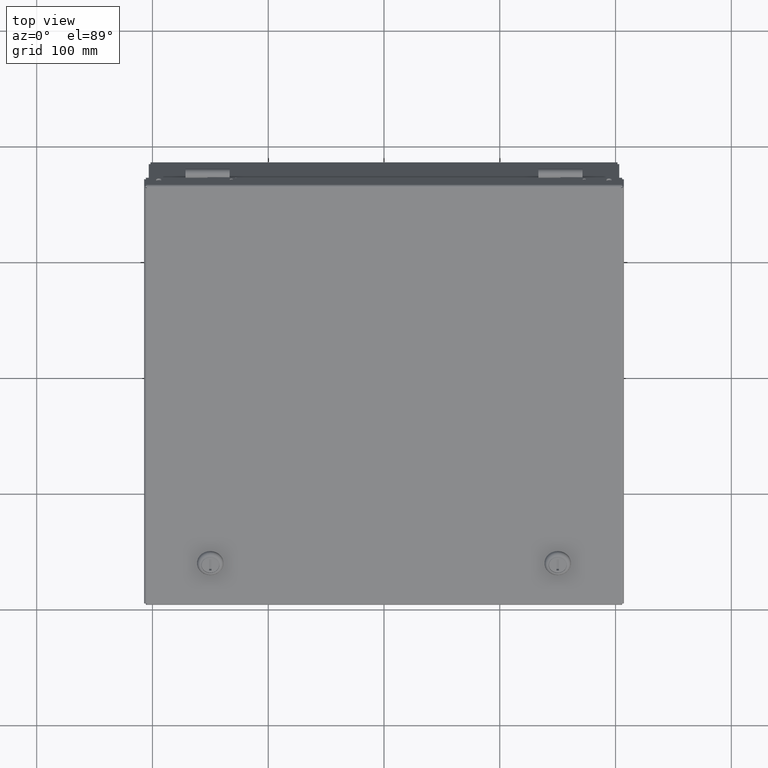
[diagram: clean part render]
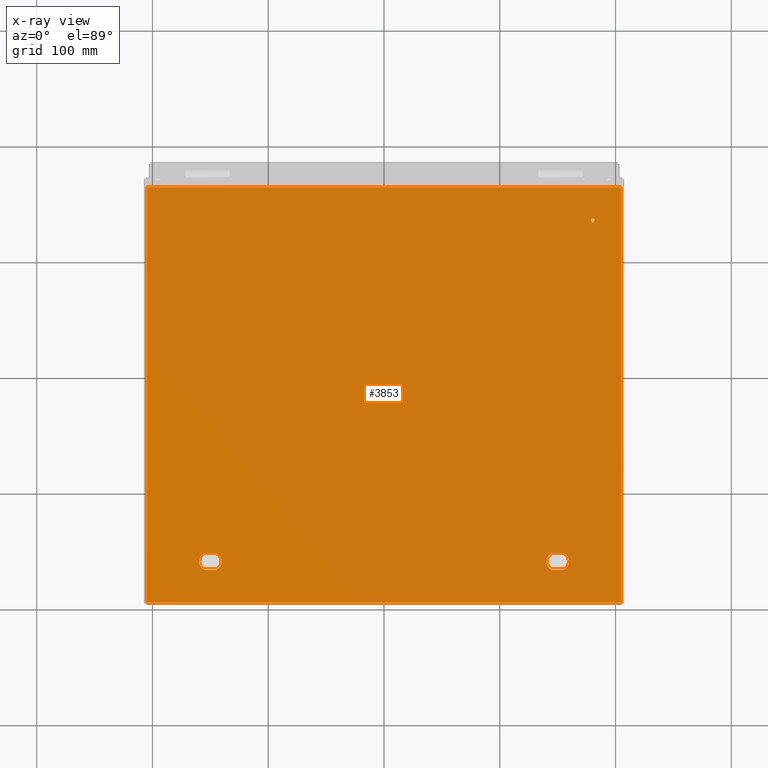
[diagram: x-ray — body ghosted, one internal face saturated and labeled with its STEP entity id]
A machine part, top view, then the same camera in x-ray: the body is ghosted and one INTERNAL B-rep face — a face not visible from any outside direction — is saturated and labeled: STEP entity #3853.
In plain terms, the highlighted planar face has unit normal (0, -0.5, 0.866).
Its self-contained STEP definition (entity closure, byte-faithful):
#3853 = ADVANCED_FACE( '', ( #8531, #8532, #8533, #8534, #8535, #8536, #8537, #8538, #8539, #8540, #8541, #8542, #8543, #8544, #8545, #8546, #8547, #8548 ), #8549, .F. );
#8531 = FACE_BOUND( '', #24967, .T. );
#8532 = FACE_BOUND( '', #24968, .T. );
#8533 = FACE_BOUND( '', #24969, .T. );
#8534 = FACE_BOUND( '', #24970, .T. );
#8535 = FACE_BOUND( '', #24971, .T. );
#8536 = FACE_BOUND( '', #24972, .T. );
#8537 = FACE_BOUND( '', #24973, .T. );
#8538 = FACE_OUTER_BOUND( '', #24974, .T. );
#8539 = FACE_BOUND( '', #24975, .T. );
#8540 = FACE_BOUND( '', #24976, .T. );
#8541 = FACE_BOUND( '', #24977, .T. );
#8542 = FACE_BOUND( '', #24978, .T. );
#8543 = FACE_BOUND( '', #24979, .T. );
#8544 = FACE_BOUND( '', #24980, .T. );
#8545 = FACE_BOUND( '', #24981, .T. );
#8546 = FACE_BOUND( '', #24982, .T. );
#8547 = FACE_BOUND( '', #24983, .T. );
#8548 = FACE_BOUND( '', #24984, .T. );
#8549 = PLANE( '', #24985 );
#24967 = EDGE_LOOP( '', ( #53774, #53775, #53776, #53777 ) );
#24968 = EDGE_LOOP( '', ( #53778, #53779, #53780, #53781, #53782, #53783, #53784 ) );
#24969 = EDGE_LOOP( '', ( #53785, #53786, #53787, #53788, #53789, #53790, #53791, #53792, #53793, #53794, #53795, #53796 ) );
#24970 = EDGE_LOOP( '', ( #53797, #53798, #53799, #53800, #53801, #53802, #53803, #53804, #53805, #53806 ) );
#24971 = EDGE_LOOP( '', ( #53807, #53808, #53809, #53810 ) );
#24972 = EDGE_LOOP( '', ( #53811, #53812, #53813, #53814 ) );
#24973 = EDGE_LOOP( '', ( #53815, #53816, #53817, #53818, #53819 ) );
#24974 = EDGE_LOOP( '', ( #53820, #53821, #53822, #53823 ) );
#24975 = EDGE_LOOP( '', ( #53824, #53825, #53826, #53827 ) );
#24976 = EDGE_LOOP( '', ( #53828, #53829, #53830, #53831 ) );
#24977 = EDGE_LOOP( '', ( #53832 ) );
#24978 = EDGE_LOOP( '', ( #53833 ) );
#24979 = EDGE_LOOP( '', ( #53834, #53835, #53836, #53837, #53838, #53839, #53840, #53841, #53842, #53843 ) );
#24980 = EDGE_LOOP( '', ( #53844 ) );
#24981 = EDGE_LOOP( '', ( #53845, #53846, #53847, #53848 ) );
#24982 = EDGE_LOOP( '', ( #53849, #53850, #53851, #53852, #53853, #53854, #53855 ) );
#24983 = EDGE_LOOP( '', ( #53856 ) );
#24984 = EDGE_LOOP( '', ( #53857, #53858, #53859, #53860, #53861, #53862, #53863 ) );
#24985 = AXIS2_PLACEMENT_3D( '', #53864, #53865, #53866 );
#53774 = ORIENTED_EDGE( '', *, *, #67279, .T. );
#53775 = ORIENTED_EDGE( '', *, *, #68268, .T. );
#53776 = ORIENTED_EDGE( '', *, *, #68269, .T. );
#53777 = ORIENTED_EDGE( '', *, *, #67807, .T. );
#53778 = ORIENTED_EDGE( '', *, *, #66852, .T. );
#53779 = ORIENTED_EDGE( '', *, *, #68270, .T. );
#53780 = ORIENTED_EDGE( '', *, *, #68271, .T. );
#53781 = ORIENTED_EDGE( '', *, *, #68272, .T. );
#53782 = ORIENTED_EDGE( '', *, *, #68273, .T. );
#53783 = ORIENTED_EDGE( '', *, *, #68274, .T. );
#53784 = ORIENTED_EDGE( '', *, *, #65601, .T. );
#53785 = ORIENTED_EDGE( '', *, *, #67349, .T. );
#53786 = ORIENTED_EDGE( '', *, *, #68190, .T. );
#53787 = ORIENTED_EDGE( '', *, *, #66847, .T. );
#53788 = ORIENTED_EDGE( '', *, *, #68275, .T. );
#53789 = ORIENTED_EDGE( '', *, *, #68276, .T. );
#53790 = ORIENTED_EDGE( '', *, *, #68277, .T. );
#53791 = ORIENTED_EDGE( '', *, *, #68151, .T. );
#53792 = ORIENTED_EDGE( '', *, *, #64970, .T. );
#53793 = ORIENTED_EDGE( '', *, *, #68278, .T. );
#53794 = ORIENTED_EDGE( '', *, *, #65808, .T. );
#53795 = ORIENTED_EDGE( '', *, *, #66014, .T. );
#53796 = ORIENTED_EDGE( '', *, *, #68279, .T. );
#53797 = ORIENTED_EDGE( '', *, *, #65630, .T. );
#53798 = ORIENTED_EDGE( '', *, *, #68280, .T. );
#53799 = ORIENTED_EDGE( '', *, *, #68281, .T. );
#53800 = ORIENTED_EDGE( '', *, *, #68282, .T. );
#53801 = ORIENTED_EDGE( '', *, *, #68283, .T. );
#53802 = ORIENTED_EDGE( '', *, *, #67722, .T. );
#53803 = ORIENTED_EDGE( '', *, *, #68284, .T. );
#53804 = ORIENTED_EDGE( '', *, *, #68285, .T. );
#53805 = ORIENTED_EDGE( '', *, *, #68286, .T. );
#53806 = ORIENTED_EDGE( '', *, *, #65621, .T. );
#53807 = ORIENTED_EDGE( '', *, *, #66313, .T. );
#53808 = ORIENTED_EDGE( '', *, *, #68287, .T. );
#53809 = ORIENTED_EDGE( '', *, *, #68288, .T. );
#53810 = ORIENTED_EDGE( '', *, *, #68289, .T. );
#53811 = ORIENTED_EDGE( '', *, *, #68290, .T. );
#53812 = ORIENTED_EDGE( '', *, *, #68291, .T. );
#53813 = ORIENTED_EDGE( '', *, *, #68292, .T. );
#53814 = ORIENTED_EDGE( '', *, *, #68293, .T. );
#53815 = ORIENTED_EDGE( '', *, *, #68294, .T. );
#53816 = ORIENTED_EDGE( '', *, *, #68295, .T. );
#53817 = ORIENTED_EDGE( '', *, *, #68296, .T. );
#53818 = ORIENTED_EDGE( '', *, *, #68297, .T. );
#53819 = ORIENTED_EDGE( '', *, *, #68298, .T. );
#53820 = ORIENTED_EDGE( '', *, *, #66712, .T. );
#53821 = ORIENTED_EDGE( '', *, *, #68299, .F. );
#53822 = ORIENTED_EDGE( '', *, *, #68300, .F. );
#53823 = ORIENTED_EDGE( '', *, *, #68301, .F. );
#53824 = ORIENTED_EDGE( '', *, *, #68302, .T. );
#53825 = ORIENTED_EDGE( '', *, *, #65841, .T. );
#53826 = ORIENTED_EDGE( '', *, *, #68303, .T. );
#53827 = ORIENTED_EDGE( '', *, *, #68304, .T. );
#53828 = ORIENTED_EDGE( '', *, *, #67849, .T. );
#53829 = ORIENTED_EDGE( '', *, *, #64924, .T. );
#53830 = ORIENTED_EDGE( '', *, *, #66320, .T. );
#53831 = ORIENTED_EDGE( '', *, *, #68305, .T. );
#53832 = ORIENTED_EDGE( '', *, *, #68306, .T. );
#53833 = ORIENTED_EDGE( '', *, *, #68307, .T. );
#53834 = ORIENTED_EDGE( '', *, *, #68308, .T. );
#53835 = ORIENTED_EDGE( '', *, *, #68309, .T. );
#53836 = ORIENTED_EDGE( '', *, *, #68310, .T. );
#53837 = ORIENTED_EDGE( '', *, *, #68311, .T. );
#53838 = ORIENTED_EDGE( '', *, *, #68312, .T. );
#53839 = ORIENTED_EDGE( '', *, *, #66718, .T. );
#53840 = ORIENTED_EDGE( '', *, *, #68313, .T. );
#53841 = ORIENTED_EDGE( '', *, *, #67502, .T. );
#53842 = ORIENTED_EDGE( '', *, *, #68314, .T. );
#53843 = ORIENTED_EDGE( '', *, *, #67657, .T. );
#53844 = ORIENTED_EDGE( '', *, *, #68315, .T. );
#53845 = ORIENTED_EDGE( '', *, *, #64931, .T. );
#53846 = ORIENTED_EDGE( '', *, *, #68316, .T. );
#53847 = ORIENTED_EDGE( '', *, *, #67738, .T. );
#53848 = ORIENTED_EDGE( '', *, *, #68317, .T. );
#53849 = ORIENTED_EDGE( '', *, *, #68318, .T. );
#53850 = ORIENTED_EDGE( '', *, *, #68319, .T. );
#53851 = ORIENTED_EDGE( '', *, *, #68320, .T. );
#53852 = ORIENTED_EDGE( '', *, *, #68321, .T. );
#53853 = ORIENTED_EDGE( '', *, *, #68322, .T. );
#53854 = ORIENTED_EDGE( '', *, *, #67879, .T. );
#53855 = ORIENTED_EDGE( '', *, *, #68323, .T. );
#53856 = ORIENTED_EDGE( '', *, *, #68324, .T. );
#53857 = ORIENTED_EDGE( '', *, *, #68325, .T. );
#53858 = ORIENTED_EDGE( '', *, *, #68326, .T. );
#53859 = ORIENTED_EDGE( '', *, *, #67254, .T. );
#53860 = ORIENTED_EDGE( '', *, *, #68327, .T. );
#53861 = ORIENTED_EDGE( '', *, *, #67726, .T. );
#53862 = ORIENTED_EDGE( '', *, *, #66186, .T. );
#53863 = ORIENTED_EDGE( '', *, *, #66593, .T. );
#53864 = CARTESIAN_POINT( '', ( 0.000000000000000, 0.000000000000000, 0.000000000000000 ) );
#53865 = DIRECTION( '', ( 0.000000000000000, 0.000000000000000, 1.00000000000000 ) );
#53866 = DIRECTION( '', ( 1.00000000000000, 0.000000000000000, 0.000000000000000 ) );
#64924 = EDGE_CURVE( '', #70917, #70922, #70924, .T. );
#64931 = EDGE_CURVE( '', #70935, #70936, #70937, .T. );
#64970 = EDGE_CURVE( '', #71006, #71007, #71008, .T. );
#65601 = EDGE_CURVE( '', #72166, #72167, #72168, .T. );
#65621 = EDGE_CURVE( '', #72198, #72199, #72200, .T. );
#65630 = EDGE_CURVE( '', #72199, #72213, #72214, .T. );
#65808 = EDGE_CURVE( '', #72515, #72516, #72517, .T. );
#65841 = EDGE_CURVE( '', #72568, #72573, #72575, .T. );
#66014 = EDGE_CURVE( '', #72516, #72862, #72863, .T. );
#66186 = EDGE_CURVE( '', #73147, #73148, #73149, .T. );
#66313 = EDGE_CURVE( '', #73358, #73359, #73360, .T. );
#66320 = EDGE_CURVE( '', #70922, #73369, #73371, .T. );
#66593 = EDGE_CURVE( '', #73148, #73810, #73811, .T. );
#66712 = EDGE_CURVE( '', #74008, #74011, #74013, .T. );
#66718 = EDGE_CURVE( '', #74021, #74022, #74023, .T. );
#66847 = EDGE_CURVE( '', #74226, #74227, #74228, .T. );
#66852 = EDGE_CURVE( '', #72167, #74235, #74236, .T. );
#67254 = EDGE_CURVE( '', #74858, #74859, #74860, .T. );
#67279 = EDGE_CURVE( '', #74897, #74898, #74899, .T. );
#67349 = EDGE_CURVE( '', #75006, #75007, #75008, .T. );
#67502 = EDGE_CURVE( '', #75249, #75250, #75251, .T. );
#67657 = EDGE_CURVE( '', #75487, #75488, #75489, .T. );
#67722 = EDGE_CURVE( '', #75585, #75586, #75587, .T. );
#67726 = EDGE_CURVE( '', #75591, #73147, #75592, .T. );
#67738 = EDGE_CURVE( '', #75608, #75609, #75610, .T. );
#67807 = EDGE_CURVE( '', #75710, #74897, #75711, .T. );
#67849 = EDGE_CURVE( '', #75770, #70917, #75772, .T. );
#67879 = EDGE_CURVE( '', #75815, #75816, #75817, .T. );
#68151 = EDGE_CURVE( '', #76206, #71006, #76207, .T. );
#68190 = EDGE_CURVE( '', #75007, #74226, #76259, .T. );
#68268 = EDGE_CURVE( '', #74898, #76372, #76373, .T. );
#68269 = EDGE_CURVE( '', #76372, #75710, #76374, .T. );
#68270 = EDGE_CURVE( '', #74235, #76375, #76376, .T. );
#68271 = EDGE_CURVE( '', #76375, #76377, #76378, .T. );
#68272 = EDGE_CURVE( '', #76377, #76379, #76380, .T. );
#68273 = EDGE_CURVE( '', #76379, #76381, #76382, .T. );
#68274 = EDGE_CURVE( '', #76381, #72166, #76383, .T. );
#68275 = EDGE_CURVE( '', #74227, #76384, #76385, .T. );
#68276 = EDGE_CURVE( '', #76384, #76386, #76387, .T. );
#68277 = EDGE_CURVE( '', #76386, #76206, #76388, .T. );
#68278 = EDGE_CURVE( '', #71007, #72515, #76389, .T. );
#68279 = EDGE_CURVE( '', #72862, #75006, #76390, .T. );
#68280 = EDGE_CURVE( '', #72213, #76391, #76392, .T. );
#68281 = EDGE_CURVE( '', #76391, #76393, #76394, .T. );
#68282 = EDGE_CURVE( '', #76393, #76395, #76396, .T. );
#68283 = EDGE_CURVE( '', #76395, #75585, #76397, .T. );
#68284 = EDGE_CURVE( '', #75586, #76398, #76399, .T. );
#68285 = EDGE_CURVE( '', #76398, #76400, #76401, .T. );
#68286 = EDGE_CURVE( '', #76400, #72198, #76402, .T. );
#68287 = EDGE_CURVE( '', #73359, #76403, #76404, .T. );
#68288 = EDGE_CURVE( '', #76403, #76405, #76406, .T. );
#68289 = EDGE_CURVE( '', #76405, #73358, #76407, .T. );
#68290 = EDGE_CURVE( '', #76408, #76409, #76410, .T. );
#68291 = EDGE_CURVE( '', #76409, #76411, #76412, .T. );
#68292 = EDGE_CURVE( '', #76411, #76413, #76414, .T. );
#68293 = EDGE_CURVE( '', #76413, #76408, #76415, .T. );
#68294 = EDGE_CURVE( '', #76416, #76417, #76418, .T. );
#68295 = EDGE_CURVE( '', #76417, #76419, #76420, .T. );
#68296 = EDGE_CURVE( '', #76419, #76421, #76422, .T. );
#68297 = EDGE_CURVE( '', #76421, #76423, #76424, .T. );
#68298 = EDGE_CURVE( '', #76423, #76416, #76425, .T. );
#68299 = EDGE_CURVE( '', #72724, #74011, #76426, .T. );
#68300 = EDGE_CURVE( '', #75603, #72724, #76427, .F. );
#68301 = EDGE_CURVE( '', #74008, #75603, #76428, .F. );
#68302 = EDGE_CURVE( '', #76429, #72568, #76430, .T. );
#68303 = EDGE_CURVE( '', #72573, #76431, #76432, .T. );
#68304 = EDGE_CURVE( '', #76431, #76429, #76433, .T. );
#68305 = EDGE_CURVE( '', #73369, #75770, #76434, .T. );
#68306 = EDGE_CURVE( '', #76435, #76435, #76436, .T. );
#68307 = EDGE_CURVE( '', #76437, #76437, #76438, .T. );
#68308 = EDGE_CURVE( '', #75488, #76439, #76440, .T. );
#68309 = EDGE_CURVE( '', #76439, #76441, #76442, .T. );
#68310 = EDGE_CURVE( '', #76441, #76443, #76444, .T. );
#68311 = EDGE_CURVE( '', #76443, #76445, #76446, .T. );
#68312 = EDGE_CURVE( '', #76445, #74021, #76447, .T. );
#68313 = EDGE_CURVE( '', #74022, #75249, #76448, .T. );
#68314 = EDGE_CURVE( '', #75250, #75487, #76449, .T. );
#68315 = EDGE_CURVE( '', #76450, #76450, #76451, .T. );
#68316 = EDGE_CURVE( '', #70936, #75608, #76452, .T. );
#68317 = EDGE_CURVE( '', #75609, #70935, #76453, .T. );
#68318 = EDGE_CURVE( '', #76454, #76455, #76456, .T. );
#68319 = EDGE_CURVE( '', #76455, #76457, #76458, .T. );
#68320 = EDGE_CURVE( '', #76457, #76459, #76460, .T. );
#68321 = EDGE_CURVE( '', #76459, #76461, #76462, .T. );
#68322 = EDGE_CURVE( '', #76461, #75815, #76463, .T. );
#68323 = EDGE_CURVE( '', #75816, #76454, #76464, .T. );
#68324 = EDGE_CURVE( '', #76465, #76465, #76466, .T. );
#68325 = EDGE_CURVE( '', #73810, #76467, #76468, .T. );
#68326 = EDGE_CURVE( '', #76467, #74858, #76469, .T. );
#68327 = EDGE_CURVE( '', #74859, #75591, #76470, .T. );
#70917 = VERTEX_POINT( '', #80142 );
#70922 = VERTEX_POINT( '', #80148 );
#70924 = CIRCLE( '', #80151, 9.71550000000000 );
#70935 = VERTEX_POINT( '', #80166 );
#70936 = VERTEX_POINT( '', #80167 );
#70937 = B_SPLINE_CURVE_WITH_KNOTS( '', 3, ( #80168, #80169, #80170, #80171, #80172, #80173, #80174 ), .UNSPECIFIED., .F., .F., ( 4, 3, 4 ), ( 0.666026513844279, 0.725098359416604, 1.00000000000000 ), .UNSPECIFIED. );
#71006 = VERTEX_POINT( '', #80296 );
#71007 = VERTEX_POINT( '', #80297 );
#71008 = B_SPLINE_CURVE_WITH_KNOTS( '', 1, ( #80298, #80299 ), .UNSPECIFIED., .F., .F., ( 2, 2 ), ( 0.655520995334370, 0.710147744945567 ), .UNSPECIFIED. );
#72166 = VERTEX_POINT( '', #84105 );
#72167 = VERTEX_POINT( '', #84106 );
#72168 = B_SPLINE_CURVE_WITH_KNOTS( '', 3, ( #84107, #84108, #84109, #84110 ), .UNSPECIFIED., .F., .F., ( 4, 4 ), ( 0.687016663234753, 0.706340563334003 ), .UNSPECIFIED. );
#72198 = VERTEX_POINT( '', #84150 );
#72199 = VERTEX_POINT( '', #84151 );
#72200 = B_SPLINE_CURVE_WITH_KNOTS( '', 1, ( #84152, #84153 ), .UNSPECIFIED., .F., .F., ( 2, 2 ), ( 0.803857174227986, 0.817505563108822 ), .UNSPECIFIED. );
#72213 = VERTEX_POINT( '', #84172 );
#72214 = B_SPLINE_CURVE_WITH_KNOTS( '', 1, ( #84173, #84174 ), .UNSPECIFIED., .F., .F., ( 2, 2 ), ( 0.817505563108822, 1.00000000000000 ), .UNSPECIFIED. );
#72515 = VERTEX_POINT( '', #85087 );
#72516 = VERTEX_POINT( '', #85088 );
#72517 = B_SPLINE_CURVE_WITH_KNOTS( '', 1, ( #85089, #85090 ), .UNSPECIFIED., .F., .F., ( 2, 2 ), ( 0.727838258164852, 0.782465007776050 ), .UNSPECIFIED. );
#72568 = VERTEX_POINT( '', #85227 );
#72573 = VERTEX_POINT( '', #85233 );
#72575 = CIRCLE( '', #85236, 9.71550000000000 );
#72724 = VERTEX_POINT( '', #85742 );
#72862 = VERTEX_POINT( '', #86021 );
#72863 = B_SPLINE_CURVE_WITH_KNOTS( '', 1, ( #86022, #86023 ), .UNSPECIFIED., .F., .F., ( 2, 2 ), ( 0.782465007776050, 0.894828926905132 ), .UNSPECIFIED. );
#73147 = VERTEX_POINT( '', #86814 );
#73148 = VERTEX_POINT( '', #86815 );
#73149 = B_SPLINE_CURVE_WITH_KNOTS( '', 3, ( #86816, #86817, #86818, #86819 ), .UNSPECIFIED., .F., .F., ( 4, 4 ), ( 0.674551348886974, 0.686947595492838 ), .UNSPECIFIED. );
#73358 = VERTEX_POINT( '', #87342 );
#73359 = VERTEX_POINT( '', #87343 );
#73360 = B_SPLINE_CURVE_WITH_KNOTS( '', 3, ( #87344, #87345, #87346, #87347 ), .UNSPECIFIED., .F., .F., ( 4, 4 ), ( 0.979167370295272, 1.00000000000000 ), .UNSPECIFIED. );
#73369 = VERTEX_POINT( '', #87362 );
#73371 = LINE( '', #87365, #87366 );
#73810 = VERTEX_POINT( '', #88750 );
#73811 = B_SPLINE_CURVE_WITH_KNOTS( '', 3, ( #88751, #88752, #88753, #88754 ), .UNSPECIFIED., .F., .F., ( 4, 4 ), ( 0.686947595492838, 0.706269421051704 ), .UNSPECIFIED. );
#74008 = VERTEX_POINT( '', #89257 );
#74011 = VERTEX_POINT( '', #89270 );
#74013 = LINE( '', #89281, #89282 );
#74021 = VERTEX_POINT( '', #89293 );
#74022 = VERTEX_POINT( '', #89294 );
#74023 = B_SPLINE_CURVE_WITH_KNOTS( '', 1, ( #89295, #89296 ), .UNSPECIFIED., .F., .F., ( 2, 2 ), ( 0.317646855525683, 0.500176987825552 ), .UNSPECIFIED. );
#74226 = VERTEX_POINT( '', #89704 );
#74227 = VERTEX_POINT( '', #89705 );
#74228 = B_SPLINE_CURVE_WITH_KNOTS( '', 1, ( #89706, #89707 ), .UNSPECIFIED., .F., .F., ( 2, 2 ), ( 0.106337480559875, 0.357309486780715 ), .UNSPECIFIED. );
#74235 = VERTEX_POINT( '', #89717 );
#74236 = B_SPLINE_CURVE_WITH_KNOTS( '', 3, ( #89718, #89719, #89720, #89721, #89722, #89723, #89724, #89725, #89726, #89727, #89728, #89729, #89730, #89731, #89732, #89733, #89734 ), .UNSPECIFIED., .F., .F., ( 4, 2, 3, 2, 3, 3, 4 ), ( 0.706340563334003, 0.759058428466538, 0.790486386526319, 0.835546690303783, 0.875600293661529, 0.942629837825041, 1.00000000000000 ), .UNSPECIFIED. );
#74858 = VERTEX_POINT( '', #91624 );
#74859 = VERTEX_POINT( '', #91625 );
#74860 = B_SPLINE_CURVE_WITH_KNOTS( '', 3, ( #91626, #91627, #91628, #91629 ), .UNSPECIFIED., .F., .F., ( 4, 4 ), ( 0.170075307769813, 0.186040537027912 ), .UNSPECIFIED. );
#74897 = VERTEX_POINT( '', #91765 );
#74898 = VERTEX_POINT( '', #91766 );
#74899 = B_SPLINE_CURVE_WITH_KNOTS( '', 3, ( #91767, #91768, #91769, #91770 ), .UNSPECIFIED., .F., .F., ( 4, 4 ), ( 0.983841476081156, 1.00000000000000 ), .UNSPECIFIED. );
#75006 = VERTEX_POINT( '', #92014 );
#75007 = VERTEX_POINT( '', #92015 );
#75008 = B_SPLINE_CURVE_WITH_KNOTS( '', 1, ( #92016, #92017 ), .UNSPECIFIED., .F., .F., ( 2, 2 ), ( 0.982892690513219, 1.00000000000000 ), .UNSPECIFIED. );
#75249 = VERTEX_POINT( '', #92757 );
#75250 = VERTEX_POINT( '', #92758 );
#75251 = B_SPLINE_CURVE_WITH_KNOTS( '', 1, ( #92759, #92760 ), .UNSPECIFIED., .F., .F., ( 2, 2 ), ( 0.510595000266919, 0.663086247705562 ), .UNSPECIFIED. );
#75487 = VERTEX_POINT( '', #93443 );
#75488 = VERTEX_POINT( '', #93444 );
#75489 = B_SPLINE_CURVE_WITH_KNOTS( '', 1, ( #93445, #93446 ), .UNSPECIFIED., .F., .F., ( 2, 2 ), ( 0.803818809232061, 0.817469867700131 ), .UNSPECIFIED. );
#75585 = VERTEX_POINT( '', #93703 );
#75586 = VERTEX_POINT( '', #93704 );
#75587 = B_SPLINE_CURVE_WITH_KNOTS( '', 1, ( #93705, #93706 ), .UNSPECIFIED., .F., .F., ( 2, 2 ), ( 0.317725441866798, 0.500219878757975 ), .UNSPECIFIED. );
#75591 = VERTEX_POINT( '', #93712 );
#75592 = B_SPLINE_CURVE_WITH_KNOTS( '', 3, ( #93713, #93714, #93715, #93716, #93717, #93718, #93719, #93720, #93721, #93722, #93723, #93724, #93725, #93726, #93727, #93728, #93729, #93730, #93731, #93732, #93733, #93734, #93735, #93736, #93737, #93738, #93739 ), .UNSPECIFIED., .F., .F., ( 4, 3, 2, 3, 2, 3, 3, 2, 3, 2, 4 ), ( 0.204323554761031, 0.227419869699875, 0.256842076205966, 0.293481050345625, 0.338654280722386, 0.384511953983644, 0.450797569217086, 0.498863624012102, 0.556917430452837, 0.605040397084984, 0.674551348886974 ), .UNSPECIFIED. );
#75603 = VERTEX_POINT( '', #93780 );
#75608 = VERTEX_POINT( '', #93804 );
#75609 = VERTEX_POINT( '', #93805 );
#75610 = B_SPLINE_CURVE_WITH_KNOTS( '', 3, ( #93806, #93807, #93808, #93809 ), .UNSPECIFIED., .F., .F., ( 4, 4 ), ( 0.180579355006403, 0.535706275162444 ), .UNSPECIFIED. );
#75710 = VERTEX_POINT( '', #94112 );
#75711 = B_SPLINE_CURVE_WITH_KNOTS( '', 3, ( #94113, #94114, #94115, #94116, #94117, #94118, #94119, #94120, #94121, #94122, #94123, #94124, #94125, #94126, #94127, #94128, #94129, #94130 ), .UNSPECIFIED., .F., .F., ( 4, 3, 3, 2, 3, 3, 4 ), ( 0.525939617926880, 0.702308187509153, 0.731117891576601, 0.755051860493071, 0.779484453761969, 0.807147886641210, 0.983841476081156 ), .UNSPECIFIED. );
#75770 = VERTEX_POINT( '', #94256 );
#75772 = LINE( '', #94259, #94260 );
#75815 = VERTEX_POINT( '', #94322 );
#75816 = VERTEX_POINT( '', #94323 );
#75817 = B_SPLINE_CURVE_WITH_KNOTS( '', 3, ( #94324, #94325, #94326, #94327 ), .UNSPECIFIED., .F., .F., ( 4, 4 ), ( 0.674568692339545, 0.687016663234753 ), .UNSPECIFIED. );
#76206 = VERTEX_POINT( '', #95309 );
#76207 = B_SPLINE_CURVE_WITH_KNOTS( '', 1, ( #95310, #95311 ), .UNSPECIFIED., .F., .F., ( 2, 2 ), ( 0.569984447900466, 0.655520995334370 ), .UNSPECIFIED. );
#76259 = B_SPLINE_CURVE_WITH_KNOTS( '', 1, ( #95533, #95534 ), .UNSPECIFIED., .F., .F., ( 2, 2 ), ( 0.000000000000000, 0.106337480559875 ), .UNSPECIFIED. );
#76372 = VERTEX_POINT( '', #95823 );
#76373 = B_SPLINE_CURVE_WITH_KNOTS( '', 3, ( #95824, #95825, #95826, #95827, #95828, #95829, #95830, #95831, #95832, #95833, #95834, #95835, #95836, #95837, #95838, #95839, #95840, #95841 ), .UNSPECIFIED., .F., .F., ( 4, 3, 3, 2, 3, 3, 4 ), ( 0.000000000000000, 0.177228065535403, 0.216047535441659, 0.255500148304700, 0.292200253293577, 0.333107798581499, 0.509952993198662 ), .UNSPECIFIED. );
#76374 = B_SPLINE_CURVE_WITH_KNOTS( '', 3, ( #95842, #95843, #95844, #95845 ), .UNSPECIFIED., .F., .F., ( 4, 4 ), ( 0.509952993198662, 0.525939617926880 ), .UNSPECIFIED. );
#76375 = VERTEX_POINT( '', #95846 );
#76376 = B_SPLINE_CURVE_WITH_KNOTS( '', 3, ( #95847, #95848, #95849, #95850, #95851, #95852, #95853, #95854, #95855, #95856, #95857, #95858 ), .UNSPECIFIED., .F., .F., ( 4, 3, 2, 3, 4 ), ( 0.000000000000000, 0.0531578673702267, 0.105126144912357, 0.143164781051442, 0.170079808752659 ), .UNSPECIFIED. );
#76377 = VERTEX_POINT( '', #95859 );
#76378 = B_SPLINE_CURVE_WITH_KNOTS( '', 3, ( #95860, #95861, #95862, #95863 ), .UNSPECIFIED., .F., .F., ( 4, 4 ), ( 0.170079808752659, 0.185983081917173 ), .UNSPECIFIED. );
#76379 = VERTEX_POINT( '', #95864 );
#76380 = B_SPLINE_CURVE_WITH_KNOTS( '', 3, ( #95865, #95866, #95867, #95868 ), .UNSPECIFIED., .F., .F., ( 4, 4 ), ( 0.185983081917173, 0.204268062656248 ), .UNSPECIFIED. );
#76381 = VERTEX_POINT( '', #95869 );
#76382 = B_SPLINE_CURVE_WITH_KNOTS( '', 3, ( #95870, #95871, #95872, #95873, #95874, #95875, #95876, #95877, #95878, #95879, #95880, #95881, #95882, #95883, #95884, #95885, #95886, #95887, #95888, #95889, #95890, #95891, #95892, #95893, #95894, #95895, #95896 ), .UNSPECIFIED., .F., .F., ( 4, 3, 2, 3, 2, 3, 3, 2, 3, 2, 4 ), ( 0.204268062656248, 0.227374736335408, 0.257043770594305, 0.293430322043896, 0.338608402567472, 0.384470999462619, 0.450763731631533, 0.498904653697955, 0.557048884245711, 0.605125169375007, 0.674568692339545 ), .UNSPECIFIED. );
#76383 = B_SPLINE_CURVE_WITH_KNOTS( '', 3, ( #95897, #95898, #95899, #95900 ), .UNSPECIFIED., .F., .F., ( 4, 4 ), ( 0.674568692339545, 0.687016663234753 ), .UNSPECIFIED. );
#76384 = VERTEX_POINT( '', #95901 );
#76385 = B_SPLINE_CURVE_WITH_KNOTS( '', 1, ( #95902, #95903 ), .UNSPECIFIED., .F., .F., ( 2, 2 ), ( 0.357309486780715, 0.463646967340591 ), .UNSPECIFIED. );
#76386 = VERTEX_POINT( '', #95904 );
#76387 = B_SPLINE_CURVE_WITH_KNOTS( '', 1, ( #95905, #95906 ), .UNSPECIFIED., .F., .F., ( 2, 2 ), ( 0.463646967340591, 0.481920684292379 ), .UNSPECIFIED. );
#76388 = B_SPLINE_CURVE_WITH_KNOTS( '', 1, ( #95907, #95908 ), .UNSPECIFIED., .F., .F., ( 2, 2 ), ( 0.481920684292379, 0.569984447900466 ), .UNSPECIFIED. );
#76389 = B_SPLINE_CURVE_WITH_KNOTS( '', 1, ( #95909, #95910 ), .UNSPECIFIED., .F., .F., ( 2, 2 ), ( 0.710147744945567, 0.727838258164852 ), .UNSPECIFIED. );
#76390 = B_SPLINE_CURVE_WITH_KNOTS( '', 1, ( #95911, #95912 ), .UNSPECIFIED., .F., .F., ( 2, 2 ), ( 0.894828926905132, 0.982892690513219 ), .UNSPECIFIED. );
#76391 = VERTEX_POINT( '', #95913 );
#76392 = B_SPLINE_CURVE_WITH_KNOTS( '', 1, ( #95914, #95915 ), .UNSPECIFIED., .F., .F., ( 2, 2 ), ( 0.000000000000000, 0.0106935830406550 ), .UNSPECIFIED. );
#76393 = VERTEX_POINT( '', #95916 );
#76394 = B_SPLINE_CURVE_WITH_KNOTS( '', 1, ( #95917, #95918 ), .UNSPECIFIED., .F., .F., ( 2, 2 ), ( 0.0106935830406550, 0.163653423057361 ), .UNSPECIFIED. );
#76395 = VERTEX_POINT( '', #95919 );
#76396 = B_SPLINE_CURVE_WITH_KNOTS( '', 1, ( #95920, #95921 ), .UNSPECIFIED., .F., .F., ( 2, 2 ), ( 0.163653423057361, 0.304499168105987 ), .UNSPECIFIED. );
#76397 = B_SPLINE_CURVE_WITH_KNOTS( '', 1, ( #95922, #95923 ), .UNSPECIFIED., .F., .F., ( 2, 2 ), ( 0.304499168105987, 0.317725441866798 ), .UNSPECIFIED. );
#76398 = VERTEX_POINT( '', #95924 );
#76399 = B_SPLINE_CURVE_WITH_KNOTS( '', 1, ( #95925, #95926 ), .UNSPECIFIED., .F., .F., ( 2, 2 ), ( 0.500219878757975, 0.510635853863330 ), .UNSPECIFIED. );
#76400 = VERTEX_POINT( '', #95927 );
#76401 = B_SPLINE_CURVE_WITH_KNOTS( '', 1, ( #95928, #95929 ), .UNSPECIFIED., .F., .F., ( 2, 2 ), ( 0.510635853863330, 0.663152134219368 ), .UNSPECIFIED. );
#76402 = B_SPLINE_CURVE_WITH_KNOTS( '', 1, ( #95930, #95931 ), .UNSPECIFIED., .F., .F., ( 2, 2 ), ( 0.663152134219368, 0.803857174227986 ), .UNSPECIFIED. );
#76403 = VERTEX_POINT( '', #95932 );
#76404 = B_SPLINE_CURVE_WITH_KNOTS( '', 3, ( #95933, #95934, #95935, #95936, #95937, #95938, #95939, #95940, #95941, #95942, #95943, #95944, #95945, #95946, #95947, #95948, #95949, #95950, #95951, #95952, #95953, #95954, #95955, #95956, #95957 ), .UNSPECIFIED., .F., .F., ( 4, 3, 3, 3, 3, 3, 3, 3, 4 ), ( 0.000000000000000, 0.0861082027795404, 0.114023795971760, 0.141958976736338, 0.370140796327457, 0.401388608217310, 0.414729711320318, 0.438810142627804, 0.514736512253717 ), .UNSPECIFIED. );
#76405 = VERTEX_POINT( '', #95958 );
#76406 = B_SPLINE_CURVE_WITH_KNOTS( '', 3, ( #95959, #95960, #95961, #95962 ), .UNSPECIFIED., .F., .F., ( 4, 4 ), ( 0.514736512253717, 0.536495036611988 ), .UNSPECIFIED. );
#76407 = B_SPLINE_CURVE_WITH_KNOTS( '', 3, ( #95963, #95964, #95965, #95966, #95967, #95968, #95969, #95970, #95971, #95972, #95973, #95974, #95975, #95976, #95977, #95978 ), .UNSPECIFIED., .F., .F., ( 4, 3, 3, 3, 3, 4 ), ( 0.536495036611988, 0.612186924539165, 0.651853264623388, 0.868744087215940, 0.902549587714552, 0.979167370295272 ), .UNSPECIFIED. );
#76408 = VERTEX_POINT( '', #95979 );
#76409 = VERTEX_POINT( '', #95980 );
#76410 = B_SPLINE_CURVE_WITH_KNOTS( '', 1, ( #95981, #95982 ), .UNSPECIFIED., .F., .F., ( 2, 2 ), ( 0.533935018050542, 1.00000000000000 ), .UNSPECIFIED. );
#76411 = VERTEX_POINT( '', #95983 );
#76412 = B_SPLINE_CURVE_WITH_KNOTS( '', 1, ( #95984, #95985 ), .UNSPECIFIED., .F., .F., ( 2, 2 ), ( 0.000000000000000, 0.0339350180505415 ), .UNSPECIFIED. );
#76413 = VERTEX_POINT( '', #95986 );
#76414 = B_SPLINE_CURVE_WITH_KNOTS( '', 1, ( #95987, #95988 ), .UNSPECIFIED., .F., .F., ( 2, 2 ), ( 0.0339350180505415, 0.500000000000000 ), .UNSPECIFIED. );
#76415 = B_SPLINE_CURVE_WITH_KNOTS( '', 1, ( #95989, #95990 ), .UNSPECIFIED., .F., .F., ( 2, 2 ), ( 0.500000000000000, 0.533935018050542 ), .UNSPECIFIED. );
#76416 = VERTEX_POINT( '', #95991 );
#76417 = VERTEX_POINT( '', #95992 );
#76418 = B_SPLINE_CURVE_WITH_KNOTS( '', 3, ( #95993, #95994, #95995, #95996, #95997, #95998, #95999, #96000, #96001, #96002 ), .UNSPECIFIED., .F., .F., ( 4, 3, 3, 4 ), ( 0.764871933882844, 0.848025193509984, 0.878969822923960, 1.00000000000000 ), .UNSPECIFIED. );
#76419 = VERTEX_POINT( '', #96003 );
#76420 = B_SPLINE_CURVE_WITH_KNOTS( '', 3, ( #96004, #96005, #96006, #96007, #96008, #96009, #96010, #96011, #96012, #96013 ), .UNSPECIFIED., .F., .F., ( 4, 3, 3, 4 ), ( 0.000000000000000, 0.0866997690994549, 0.151008712242245, 0.208624872895838 ), .UNSPECIFIED. );
#76421 = VERTEX_POINT( '', #96014 );
#76422 = B_SPLINE_CURVE_WITH_KNOTS( '', 3, ( #96015, #96016, #96017, #96018 ), .UNSPECIFIED., .F., .F., ( 4, 4 ), ( 0.208624872895838, 0.370106800294617 ), .UNSPECIFIED. );
#76423 = VERTEX_POINT( '', #96019 );
#76424 = B_SPLINE_CURVE_WITH_KNOTS( '', 3, ( #96020, #96021, #96022, #96023 ), .UNSPECIFIED., .F., .F., ( 4, 4 ), ( 0.370106800294617, 0.396783955260320 ), .UNSPECIFIED. );
#76425 = B_SPLINE_CURVE_WITH_KNOTS( '', 3, ( #96024, #96025, #96026, #96027 ), .UNSPECIFIED., .F., .F., ( 4, 4 ), ( 0.396783955260320, 0.764871933882844 ), .UNSPECIFIED. );
#76426 = LINE( '', #96028, #96029 );
#76427 = LINE( '', #96030, #96031 );
#76428 = LINE( '', #96032, #96033 );
#76429 = VERTEX_POINT( '', #96034 );
#76430 = LINE( '', #96035, #96036 );
#76431 = VERTEX_POINT( '', #96037 );
#76432 = LINE( '', #96038, #96039 );
#76433 = CIRCLE( '', #96040, 9.71550000000000 );
#76434 = CIRCLE( '', #96041, 9.71550000000000 );
#76435 = VERTEX_POINT( '', #96042 );
#76436 = CIRCLE( '', #96043, 1.58750000000000 );
#76437 = VERTEX_POINT( '', #96044 );
#76438 = B_SPLINE_CURVE_WITH_KNOTS( '', 3, ( #96045, #96046, #96047, #96048, #96049, #96050, #96051, #96052, #96053, #96054, #96055, #96056, #96057, #96058, #96059, #96060, #96061, #96062, #96063, #96064, #96065, #96066, #96067, #96068, #96069, #96070, #96071, #96072, #96073 ), .UNSPECIFIED., .T., .F., ( 4, 3, 2, 3, 3, 3, 3, 2, 3, 3, 4 ), ( 0.000000000000000, 0.0640932743862381, 0.129622015893913, 0.194299734784605, 0.259268037126023, 0.499035905405616, 0.566737119469540, 0.632366145646397, 0.695534083341622, 0.759610276198770, 1.00000000000000 ), .UNSPECIFIED. );
#76439 = VERTEX_POINT( '', #96074 );
#76440 = B_SPLINE_CURVE_WITH_KNOTS( '', 1, ( #96075, #96076 ), .UNSPECIFIED., .F., .F., ( 2, 2 ), ( 0.817469867700131, 1.00000000000000 ), .UNSPECIFIED. );
#76441 = VERTEX_POINT( '', #96077 );
#76442 = B_SPLINE_CURVE_WITH_KNOTS( '', 1, ( #96078, #96079 ), .UNSPECIFIED., .F., .F., ( 2, 2 ), ( 0.000000000000000, 0.0106956746760139 ), .UNSPECIFIED. );
#76443 = VERTEX_POINT( '', #96080 );
#76444 = B_SPLINE_CURVE_WITH_KNOTS( '', 1, ( #96081, #96082 ), .UNSPECIFIED., .F., .F., ( 2, 2 ), ( 0.0106956746760139, 0.163685433215693 ), .UNSPECIFIED. );
#76445 = VERTEX_POINT( '', #96083 );
#76446 = B_SPLINE_CURVE_WITH_KNOTS( '', 1, ( #96084, #96085 ), .UNSPECIFIED., .F., .F., ( 2, 2 ), ( 0.163685433215693, 0.304558727303718 ), .UNSPECIFIED. );
#76447 = B_SPLINE_CURVE_WITH_KNOTS( '', 1, ( #96086, #96087 ), .UNSPECIFIED., .F., .F., ( 2, 2 ), ( 0.304558727303718, 0.317646855525683 ), .UNSPECIFIED. );
#76448 = B_SPLINE_CURVE_WITH_KNOTS( '', 1, ( #96088, #96089 ), .UNSPECIFIED., .F., .F., ( 2, 2 ), ( 0.500176987825552, 0.510595000266919 ), .UNSPECIFIED. );
#76449 = B_SPLINE_CURVE_WITH_KNOTS( '', 1, ( #96090, #96091 ), .UNSPECIFIED., .F., .F., ( 2, 2 ), ( 0.663086247705562, 0.803818809232061 ), .UNSPECIFIED. );
#76450 = VERTEX_POINT( '', #96092 );
#76451 = B_SPLINE_CURVE_WITH_KNOTS( '', 3, ( #96093, #96094, #96095, #96096, #96097, #96098, #96099, #96100, #96101, #96102, #96103, #96104, #96105, #96106, #96107, #96108, #96109, #96110, #96111, #96112, #96113, #96114, #96115, #96116, #96117, #96118, #96119, #96120, #96121 ), .UNSPECIFIED., .T., .F., ( 4, 3, 2, 3, 3, 3, 3, 2, 3, 3, 4 ), ( 0.000000000000000, 0.0641681965463350, 0.128705719660391, 0.194092420710158, 0.259262985961382, 0.499070427492245, 0.566916327919302, 0.633243013505071, 0.695475459239869, 0.759609111931601, 1.00000000000000 ), .UNSPECIFIED. );
#76452 = B_SPLINE_CURVE_WITH_KNOTS( '', 3, ( #96122, #96123, #96124, #96125, #96126, #96127, #96128, #96129, #96130, #96131 ), .UNSPECIFIED., .F., .F., ( 4, 3, 3, 4 ), ( 0.000000000000000, 0.0306008641385628, 0.0614933481538985, 0.180579355006403 ), .UNSPECIFIED. );
#76453 = B_SPLINE_CURVE_WITH_KNOTS( '', 3, ( #96132, #96133, #96134, #96135, #96136, #96137, #96138 ), .UNSPECIFIED., .F., .F., ( 4, 3, 4 ), ( 0.535706275162444, 0.642764583397611, 0.666026513844279 ), .UNSPECIFIED. );
#76454 = VERTEX_POINT( '', #96139 );
#76455 = VERTEX_POINT( '', #96140 );
#76456 = B_SPLINE_CURVE_WITH_KNOTS( '', 3, ( #96141, #96142, #96143, #96144, #96145, #96146, #96147, #96148, #96149, #96150, #96151, #96152, #96153, #96154, #96155, #96156, #96157 ), .UNSPECIFIED., .F., .F., ( 4, 2, 3, 2, 3, 3, 4 ), ( 0.706340563334003, 0.759058428466538, 0.790486386526318, 0.835546690303783, 0.875600293661529, 0.942629837825041, 1.00000000000000 ), .UNSPECIFIED. );
#76457 = VERTEX_POINT( '', #96158 );
#76458 = B_SPLINE_CURVE_WITH_KNOTS( '', 3, ( #96159, #96160, #96161, #96162, #96163, #96164, #96165, #96166, #96167, #96168, #96169, #96170 ), .UNSPECIFIED., .F., .F., ( 4, 3, 2, 3, 4 ), ( 0.000000000000000, 0.0531578673702267, 0.105126144912357, 0.143164781051442, 0.170079808752659 ), .UNSPECIFIED. );
#76459 = VERTEX_POINT( '', #96171 );
#76460 = B_SPLINE_CURVE_WITH_KNOTS( '', 3, ( #96172, #96173, #96174, #96175 ), .UNSPECIFIED., .F., .F., ( 4, 4 ), ( 0.170079808752659, 0.185983081917173 ), .UNSPECIFIED. );
#76461 = VERTEX_POINT( '', #96176 );
#76462 = B_SPLINE_CURVE_WITH_KNOTS( '', 3, ( #96177, #96178, #96179, #96180 ), .UNSPECIFIED., .F., .F., ( 4, 4 ), ( 0.185983081917173, 0.204268062656248 ), .UNSPECIFIED. );
#76463 = B_SPLINE_CURVE_WITH_KNOTS( '', 3, ( #96181, #96182, #96183, #96184, #96185, #96186, #96187, #96188, #96189, #96190, #96191, #96192, #96193, #96194, #96195, #96196, #96197, #96198, #96199, #96200, #96201, #96202, #96203, #96204, #96205, #96206, #96207 ), .UNSPECIFIED., .F., .F., ( 4, 3, 2, 3, 2, 3, 3, 2, 3, 2, 4 ), ( 0.204268062656248, 0.227374736335408, 0.257043770594305, 0.293430322043896, 0.338608402567473, 0.384470999462619, 0.450763731631533, 0.498904653697955, 0.557048884245711, 0.605125169375007, 0.674568692339545 ), .UNSPECIFIED. );
#76464 = B_SPLINE_CURVE_WITH_KNOTS( '', 3, ( #96208, #96209, #96210, #96211 ), .UNSPECIFIED., .F., .F., ( 4, 4 ), ( 0.687016663234753, 0.706340563334003 ), .UNSPECIFIED. );
#76465 = VERTEX_POINT( '', #96212 );
#76466 = B_SPLINE_CURVE_WITH_KNOTS( '', 3, ( #96213, #96214, #96215, #96216, #96217, #96218, #96219, #96220, #96221, #96222, #96223, #96224, #96225, #96226, #96227, #96228, #96229, #96230, #96231, #96232, #96233, #96234, #96235, #96236, #96237, #96238, #96239, #96240, #96241 ), .UNSPECIFIED., .T., .F., ( 4, 3, 2, 3, 3, 3, 3, 2, 3, 3, 4 ), ( 0.000000000000000, 0.0642631913376253, 0.129569912309800, 0.194028494048571, 0.259063982903967, 0.499166370309846, 0.566851455277225, 0.632726612661011, 0.695348675853005, 0.759353781624414, 1.00000000000000 ), .UNSPECIFIED. );
#76467 = VERTEX_POINT( '', #96242 );
#76468 = B_SPLINE_CURVE_WITH_KNOTS( '', 3, ( #96243, #96244, #96245, #96246, #96247, #96248, #96249, #96250, #96251, #96252, #96253, #96254, #96255, #96256, #96257, #96258, #96259 ), .UNSPECIFIED., .F., .F., ( 4, 2, 3, 2, 3, 3, 4 ), ( 0.706269421051704, 0.759176643987553, 0.790417099435389, 0.835552354753791, 0.875672581703483, 0.942544018306904, 1.00000000000000 ), .UNSPECIFIED. );
#76469 = B_SPLINE_CURVE_WITH_KNOTS( '', 3, ( #96260, #96261, #96262, #96263, #96264, #96265, #96266, #96267, #96268, #96269, #96270, #96271 ), .UNSPECIFIED., .F., .F., ( 4, 3, 2, 3, 4 ), ( 0.000000000000000, 0.0531521605438596, 0.105119570083058, 0.143157570879792, 0.170075307769813 ), .UNSPECIFIED. );
#76470 = B_SPLINE_CURVE_WITH_KNOTS( '', 3, ( #96272, #96273, #96274, #96275 ), .UNSPECIFIED., .F., .F., ( 4, 4 ), ( 0.186040537027912, 0.204323554761031 ), .UNSPECIFIED. );
#80142 = CARTESIAN_POINT( '', ( 144.715530159979, -156.476700000000, 0.000000000000000 ) );
#80148 = CARTESIAN_POINT( '', ( 144.715530159979, -172.732700000000, 0.000000000000000 ) );
#80151 = AXIS2_PLACEMENT_3D( '', #103986, #103987, #103988 );
#80166 = CARTESIAN_POINT( '', ( 179.480907387662, 174.200957349581, 0.000000000000000 ) );
#80167 = CARTESIAN_POINT( '', ( 179.526948514852, 174.650535415080, 0.000000000000000 ) );
#80168 = CARTESIAN_POINT( '', ( 179.480907387662, 174.200957349581, 0.000000000000000 ) );
#80169 = CARTESIAN_POINT( '', ( 179.511472505712, 174.209082254379, 0.000000000000000 ) );
#80170 = CARTESIAN_POINT( '', ( 179.526948514852, 174.229587966489, 0.000000000000000 ) );
#80171 = CARTESIAN_POINT( '', ( 179.526948514852, 174.262087585681, 0.000000000000000 ) );
#80172 = CARTESIAN_POINT( '', ( 179.526948514852, 174.391570195481, 0.000000000000000 ) );
#80173 = CARTESIAN_POINT( '', ( 179.526948514852, 174.521052805281, 0.000000000000000 ) );
#80174 = CARTESIAN_POINT( '', ( 179.526948514852, 174.650535415080, 0.000000000000000 ) );
#80296 = CARTESIAN_POINT( '', ( 179.634506778371, 174.405240670221, 0.000000000000000 ) );
#80297 = CARTESIAN_POINT( '', ( 179.743225742575, 174.405240670221, 0.000000000000000 ) );
#80298 = CARTESIAN_POINT( '', ( 179.634506778371, 174.405240670221, 0.000000000000000 ) );
#80299 = CARTESIAN_POINT( '', ( 179.743225742575, 174.405240670221, 0.000000000000000 ) );
#84105 = CARTESIAN_POINT( '', ( 180.347176999238, 174.282206397563, 0.000000000000000 ) );
#84106 = CARTESIAN_POINT( '', ( 180.311195277990, 174.282206397563, 0.000000000000000 ) );
#84107 = CARTESIAN_POINT( '', ( 180.347176999238, 174.282206397563, 0.000000000000000 ) );
#84108 = CARTESIAN_POINT( '', ( 180.335183092156, 174.282206397563, 0.000000000000000 ) );
#84109 = CARTESIAN_POINT( '', ( 180.323189185073, 174.282206397563, 0.000000000000000 ) );
#84110 = CARTESIAN_POINT( '', ( 180.311195277990, 174.282206397563, 0.000000000000000 ) );
#84150 = CARTESIAN_POINT( '', ( 181.115367402894, 170.358554455446, 0.000000000000000 ) );
#84151 = CARTESIAN_POINT( '', ( 181.152896725057, 170.358554455446, 0.000000000000000 ) );
#84152 = CARTESIAN_POINT( '', ( 181.115367402894, 170.358554455446, 0.000000000000000 ) );
#84153 = CARTESIAN_POINT( '', ( 181.152896725057, 170.358554455446, 0.000000000000000 ) );
#84172 = CARTESIAN_POINT( '', ( 181.152896725057, 170.860364051789, 0.000000000000000 ) );
#84173 = CARTESIAN_POINT( '', ( 181.152896725057, 170.358554455446, 0.000000000000000 ) );
#84174 = CARTESIAN_POINT( '', ( 181.152896725057, 170.860364051789, 0.000000000000000 ) );
#85087 = CARTESIAN_POINT( '', ( 179.743225742575, 174.440448591013, 0.000000000000000 ) );
#85088 = CARTESIAN_POINT( '', ( 179.634506778370, 174.440448591013, 0.000000000000000 ) );
#85089 = CARTESIAN_POINT( '', ( 179.743225742575, 174.440448591013, 0.000000000000000 ) );
#85090 = CARTESIAN_POINT( '', ( 179.634506778370, 174.440448591013, 0.000000000000000 ) );
#85227 = CARTESIAN_POINT( '', ( -155.360069840021, -156.476700000000, 0.000000000000000 ) );
#85233 = CARTESIAN_POINT( '', ( -155.360069840021, -172.732700000000, 0.000000000000000 ) );
#85236 = AXIS2_PLACEMENT_3D( '', #104422, #104423, #104424 );
#85742 = CARTESIAN_POINT( '', ( -204.851000000000, -205.117700000000, -4.77048955893622E-015 ) );
#86021 = CARTESIAN_POINT( '', ( 179.634506778371, 174.664076923076, 0.000000000000000 ) );
#86022 = CARTESIAN_POINT( '', ( 179.634506778370, 174.440448591013, 0.000000000000000 ) );
#86023 = CARTESIAN_POINT( '', ( 179.634506778371, 174.664076923076, 0.000000000000000 ) );
#86814 = CARTESIAN_POINT( '', ( 181.214607311500, 174.259766184311, 0.000000000000000 ) );
#86815 = CARTESIAN_POINT( '', ( 181.220023914699, 174.282206397563, 0.000000000000000 ) );
#86816 = CARTESIAN_POINT( '', ( 181.214607311500, 174.259766184311, 0.000000000000000 ) );
#86817 = CARTESIAN_POINT( '', ( 181.216412845900, 174.267246255395, 0.000000000000000 ) );
#86818 = CARTESIAN_POINT( '', ( 181.218218380300, 174.274726326479, 0.000000000000000 ) );
#86819 = CARTESIAN_POINT( '', ( 181.220023914699, 174.282206397563, 0.000000000000000 ) );
#87342 = CARTESIAN_POINT( '', ( 180.551653769993, 170.825543031226, 0.000000000000000 ) );
#87343 = CARTESIAN_POINT( '', ( 180.551653769993, 170.860364051789, 0.000000000000000 ) );
#87344 = CARTESIAN_POINT( '', ( 180.551653769993, 170.825543031226, 0.000000000000000 ) );
#87345 = CARTESIAN_POINT( '', ( 180.551653769993, 170.837150038080, 0.000000000000000 ) );
#87346 = CARTESIAN_POINT( '', ( 180.551653769993, 170.848757044935, 0.000000000000000 ) );
#87347 = CARTESIAN_POINT( '', ( 180.551653769993, 170.860364051789, 0.000000000000000 ) );
#87362 = CARTESIAN_POINT( '', ( 155.360069840021, -172.732700000000, 0.000000000000000 ) );
#87365 = CARTESIAN_POINT( '', ( 0.000000000000000, -172.732700000000, 0.000000000000000 ) );
#87366 = VECTOR( '', #104697, 1000.00000000000 );
#88750 = CARTESIAN_POINT( '', ( 181.184042193450, 174.282206397563, 0.000000000000000 ) );
#88751 = CARTESIAN_POINT( '', ( 181.220023914699, 174.282206397563, 0.000000000000000 ) );
#88752 = CARTESIAN_POINT( '', ( 181.208030007616, 174.282206397563, 0.000000000000000 ) );
#88753 = CARTESIAN_POINT( '', ( 181.196036100533, 174.282206397563, 0.000000000000000 ) );
#88754 = CARTESIAN_POINT( '', ( 181.184042193450, 174.282206397563, 0.000000000000000 ) );
#89257 = CARTESIAN_POINT( '', ( 204.851000000000, 205.117700000000, -3.46944695195362E-015 ) );
#89270 = CARTESIAN_POINT( '', ( 204.851000000000, -205.117700000000, 0.000000000000000 ) );
#89281 = CARTESIAN_POINT( '', ( 204.851000000000, -205.117700000000, 0.000000000000000 ) );
#89282 = VECTOR( '', #104899, 1000.00000000000 );
#89293 = CARTESIAN_POINT( '', ( 180.044427570450, 170.860364051789, 0.000000000000000 ) );
#89294 = CARTESIAN_POINT( '', ( 180.044427570450, 170.358554455446, 0.000000000000000 ) );
#89295 = CARTESIAN_POINT( '', ( 180.044427570450, 170.860364051789, 0.000000000000000 ) );
#89296 = CARTESIAN_POINT( '', ( 180.044427570450, 170.358554455446, 0.000000000000000 ) );
#89704 = CARTESIAN_POINT( '', ( 179.598138156893, 174.698124143183, 0.000000000000000 ) );
#89705 = CARTESIAN_POINT( '', ( 179.598138156893, 174.198635948210, 0.000000000000000 ) );
#89706 = CARTESIAN_POINT( '', ( 179.598138156893, 174.698124143183, 0.000000000000000 ) );
#89707 = CARTESIAN_POINT( '', ( 179.598138156893, 174.198635948210, 0.000000000000000 ) );
#89717 = CARTESIAN_POINT( '', ( 180.357236405179, 174.575089870525, 0.000000000000000 ) );
#89718 = CARTESIAN_POINT( '', ( 180.311195277990, 174.282206397563, 0.000000000000000 ) );
#89719 = CARTESIAN_POINT( '', ( 180.305778674791, 174.250093678598, 0.000000000000000 ) );
#89720 = CARTESIAN_POINT( '', ( 180.282564661081, 174.233843869002, 0.000000000000000 ) );
#89721 = CARTESIAN_POINT( '', ( 180.218339223153, 174.233843869002, 0.000000000000000 ) );
#89722 = CARTESIAN_POINT( '', ( 180.199768012186, 174.242355674029, 0.000000000000000 ) );
#89723 = CARTESIAN_POINT( '', ( 180.186613404418, 174.259379284082, 0.000000000000000 ) );
#89724 = CARTESIAN_POINT( '', ( 180.174641520116, 174.274872310826, 0.000000000000000 ) );
#89725 = CARTESIAN_POINT( '', ( 180.168815993907, 174.295361005331, 0.000000000000000 ) );
#89726 = CARTESIAN_POINT( '', ( 180.168815993907, 174.341402132520, 0.000000000000000 ) );
#89727 = CARTESIAN_POINT( '', ( 180.185065803504, 174.367324447829, 0.000000000000000 ) );
#89728 = CARTESIAN_POINT( '', ( 180.217565422696, 174.397889565880, 0.000000000000000 ) );
#89729 = CARTESIAN_POINT( '', ( 180.247871841045, 174.426392030755, 0.000000000000000 ) );
#89730 = CARTESIAN_POINT( '', ( 180.278179791825, 174.454892866210, 0.000000000000000 ) );
#89731 = CARTESIAN_POINT( '', ( 180.308486976390, 174.483394516375, 0.000000000000000 ) );
#89732 = CARTESIAN_POINT( '', ( 180.340987417225, 174.513958760733, 0.000000000000000 ) );
#89733 = CARTESIAN_POINT( '', ( 180.357236405179, 174.544524752475, 0.000000000000000 ) );
#89734 = CARTESIAN_POINT( '', ( 180.357236405179, 174.575089870525, 0.000000000000000 ) );
#91624 = CARTESIAN_POINT( '', ( 181.012258492003, 174.642023610053, 0.000000000000000 ) );
#91625 = CARTESIAN_POINT( '', ( 181.002972886520, 174.613779893374, 0.000000000000000 ) );
#91626 = CARTESIAN_POINT( '', ( 181.012258492003, 174.642023610053, 0.000000000000000 ) );
#91627 = CARTESIAN_POINT( '', ( 181.009163290176, 174.632609037826, 0.000000000000000 ) );
#91628 = CARTESIAN_POINT( '', ( 181.006068088347, 174.623194465600, 0.000000000000000 ) );
#91629 = CARTESIAN_POINT( '', ( 181.002972886520, 174.613779893374, 0.000000000000000 ) );
#91765 = CARTESIAN_POINT( '', ( 180.913598933740, 174.197475247525, 0.000000000000000 ) );
#91766 = CARTESIAN_POINT( '', ( 180.949967555217, 174.197475247525, 0.000000000000000 ) );
#91767 = CARTESIAN_POINT( '', ( 180.913598933740, 174.197475247525, 0.000000000000000 ) );
#91768 = CARTESIAN_POINT( '', ( 180.925721807566, 174.197475247525, 0.000000000000000 ) );
#91769 = CARTESIAN_POINT( '', ( 180.937844681392, 174.197475247525, 0.000000000000000 ) );
#91770 = CARTESIAN_POINT( '', ( 180.949967555217, 174.197475247525, 0.000000000000000 ) );
#92014 = CARTESIAN_POINT( '', ( 179.809772581873, 174.664076923076, 0.000000000000000 ) );
#92015 = CARTESIAN_POINT( '', ( 179.809772581873, 174.698124143183, 0.000000000000000 ) );
#92016 = CARTESIAN_POINT( '', ( 179.809772581873, 174.664076923076, 0.000000000000000 ) );
#92017 = CARTESIAN_POINT( '', ( 179.809772581873, 174.698124143183, 0.000000000000000 ) );
#92757 = CARTESIAN_POINT( '', ( 180.073058187357, 170.359328255903, 0.000000000000000 ) );
#92758 = CARTESIAN_POINT( '', ( 180.236330083778, 170.745454683930, 0.000000000000000 ) );
#92759 = CARTESIAN_POINT( '', ( 180.073058187357, 170.359328255903, 0.000000000000000 ) );
#92760 = CARTESIAN_POINT( '', ( 180.236330083778, 170.745454683930, 0.000000000000000 ) );
#93443 = CARTESIAN_POINT( '', ( 180.236330083778, 170.358554455446, 0.000000000000000 ) );
#93444 = CARTESIAN_POINT( '', ( 180.273859405941, 170.358554455446, 0.000000000000000 ) );
#93445 = CARTESIAN_POINT( '', ( 180.236330083778, 170.358554455446, 0.000000000000000 ) );
#93446 = CARTESIAN_POINT( '', ( 180.273859405941, 170.358554455446, 0.000000000000000 ) );
#93703 = CARTESIAN_POINT( '', ( 180.923077989338, 170.860364051789, 0.000000000000000 ) );
#93704 = CARTESIAN_POINT( '', ( 180.923077989338, 170.358554455446, 0.000000000000000 ) );
#93705 = CARTESIAN_POINT( '', ( 180.923077989338, 170.860364051789, 0.000000000000000 ) );
#93706 = CARTESIAN_POINT( '', ( 180.923077989338, 170.358554455446, 0.000000000000000 ) );
#93712 = CARTESIAN_POINT( '', ( 181.037020106626, 174.613779893374, 0.000000000000000 ) );
#93713 = CARTESIAN_POINT( '', ( 181.037020106626, 174.613779893374, 0.000000000000000 ) );
#93714 = CARTESIAN_POINT( '', ( 181.047466412795, 174.632738004570, 0.000000000000000 ) );
#93715 = CARTESIAN_POINT( '', ( 181.054817517136, 174.644731911653, 0.000000000000000 ) );
#93716 = CARTESIAN_POINT( '', ( 181.059847220107, 174.650148514852, 0.000000000000000 ) );
#93717 = CARTESIAN_POINT( '', ( 181.071766927146, 174.662985122432, 0.000000000000000 ) );
#93718 = CARTESIAN_POINT( '', ( 181.088090936786, 174.669106626047, 0.000000000000000 ) );
#93719 = CARTESIAN_POINT( '', ( 181.134132063976, 174.669106626047, 0.000000000000000 ) );
#93720 = CARTESIAN_POINT( '', ( 181.154637776086, 174.660594821021, 0.000000000000000 ) );
#93721 = CARTESIAN_POINT( '', ( 181.170887585682, 174.643958111195, 0.000000000000000 ) );
#93722 = CARTESIAN_POINT( '', ( 181.187330791850, 174.627123400119, 0.000000000000000 ) );
#93723 = CARTESIAN_POINT( '', ( 181.195262300076, 174.606041888804, 0.000000000000000 ) );
#93724 = CARTESIAN_POINT( '', ( 181.195262300076, 174.554584158415, 0.000000000000000 ) );
#93725 = CARTESIAN_POINT( '', ( 181.179012490480, 174.526727341964, 0.000000000000000 ) );
#93726 = CARTESIAN_POINT( '', ( 181.146125971059, 174.496936024372, 0.000000000000000 ) );
#93727 = CARTESIAN_POINT( '', ( 181.115638729156, 174.469318169941, 0.000000000000000 ) );
#93728 = CARTESIAN_POINT( '', ( 181.086285402386, 174.440448591013, 0.000000000000000 ) );
#93729 = CARTESIAN_POINT( '', ( 181.056365118051, 174.412204874334, 0.000000000000000 ) );
#93730 = CARTESIAN_POINT( '', ( 181.024115234526, 174.381762096352, 0.000000000000000 ) );
#93731 = CARTESIAN_POINT( '', ( 181.008002589490, 174.352235338918, 0.000000000000000 ) );
#93732 = CARTESIAN_POINT( '', ( 181.008002589490, 174.286462300076, 0.000000000000000 ) );
#93733 = CARTESIAN_POINT( '', ( 181.016514394516, 174.257444782940, 0.000000000000000 ) );
#93734 = CARTESIAN_POINT( '', ( 181.033538004570, 174.235004569688, 0.000000000000000 ) );
#93735 = CARTESIAN_POINT( '', ( 181.052572327811, 174.209913870870, 0.000000000000000 ) );
#93736 = CARTESIAN_POINT( '', ( 181.079579131760, 174.197475247525, 0.000000000000000 ) );
#93737 = CARTESIAN_POINT( '', ( 181.164697182026, 174.197475247525, 0.000000000000000 ) );
#93738 = CARTESIAN_POINT( '', ( 181.197970601676, 174.218367859863, 0.000000000000000 ) );
#93739 = CARTESIAN_POINT( '', ( 181.214607311500, 174.259766184311, 0.000000000000000 ) );
#93780 = CARTESIAN_POINT( '', ( -204.851000000000, 205.117700000000, -4.33680868994202E-015 ) );
#93804 = CARTESIAN_POINT( '', ( 179.297129779132, 174.699284843869, 0.000000000000000 ) );
#93805 = CARTESIAN_POINT( '', ( 179.297129779132, 174.197475247525, 0.000000000000000 ) );
#93806 = CARTESIAN_POINT( '', ( 179.297129779132, 174.699284843869, 0.000000000000000 ) );
#93807 = CARTESIAN_POINT( '', ( 179.297129779132, 174.532014978421, 0.000000000000000 ) );
#93808 = CARTESIAN_POINT( '', ( 179.297129779132, 174.364745112973, 0.000000000000000 ) );
#93809 = CARTESIAN_POINT( '', ( 179.297129779132, 174.197475247525, 0.000000000000000 ) );
#94112 = CARTESIAN_POINT( '', ( 180.753809139376, 174.197475247525, 0.000000000000000 ) );
#94113 = CARTESIAN_POINT( '', ( 180.753809139376, 174.197475247525, 0.000000000000000 ) );
#94114 = CARTESIAN_POINT( '', ( 180.753809139376, 174.329795125666, 0.000000000000000 ) );
#94115 = CARTESIAN_POINT( '', ( 180.753809139376, 174.462115003808, 0.000000000000000 ) );
#94116 = CARTESIAN_POINT( '', ( 180.753809139376, 174.594434881950, 0.000000000000000 ) );
#94117 = CARTESIAN_POINT( '', ( 180.753809139376, 174.617648895659, 0.000000000000000 ) );
#94118 = CARTESIAN_POINT( '', ( 180.764255445545, 174.635446306169, 0.000000000000000 ) );
#94119 = CARTESIAN_POINT( '', ( 180.784374257426, 174.648214013709, 0.000000000000000 ) );
#94120 = CARTESIAN_POINT( '', ( 180.800859695688, 174.658675926452, 0.000000000000000 ) );
#94121 = CARTESIAN_POINT( '', ( 180.818034577304, 174.664076923076, 0.000000000000000 ) );
#94122 = CARTESIAN_POINT( '', ( 180.855563899467, 174.664076923076, 0.000000000000000 ) );
#94123 = CARTESIAN_POINT( '', ( 180.872200609292, 174.659047220106, 0.000000000000000 ) );
#94124 = CARTESIAN_POINT( '', ( 180.886902817974, 174.648600913937, 0.000000000000000 ) );
#94125 = CARTESIAN_POINT( '', ( 180.904575238167, 174.636044194327, 0.000000000000000 ) );
#94126 = CARTESIAN_POINT( '', ( 180.913598933740, 174.618035795887, 0.000000000000000 ) );
#94127 = CARTESIAN_POINT( '', ( 180.913598933740, 174.595208682407, 0.000000000000000 ) );
#94128 = CARTESIAN_POINT( '', ( 180.913598933740, 174.462630870779, 0.000000000000000 ) );
#94129 = CARTESIAN_POINT( '', ( 180.913598933740, 174.330053059152, 0.000000000000000 ) );
#94130 = CARTESIAN_POINT( '', ( 180.913598933740, 174.197475247525, 0.000000000000000 ) );
#94256 = CARTESIAN_POINT( '', ( 155.360069840021, -156.476700000000, 0.000000000000000 ) );
#94259 = CARTESIAN_POINT( '', ( 0.000000000000000, -156.476700000000, 0.000000000000000 ) );
#94260 = VECTOR( '', #105572, 1000.00000000000 );
#94322 = CARTESIAN_POINT( '', ( 180.070543335872, 174.259766184311, 0.000000000000000 ) );
#94323 = CARTESIAN_POINT( '', ( 180.076346839300, 174.282206397563, 0.000000000000000 ) );
#94324 = CARTESIAN_POINT( '', ( 180.070543335872, 174.259766184311, 0.000000000000000 ) );
#94325 = CARTESIAN_POINT( '', ( 180.072477837015, 174.267246255395, 0.000000000000000 ) );
#94326 = CARTESIAN_POINT( '', ( 180.074412338157, 174.274726326479, 0.000000000000000 ) );
#94327 = CARTESIAN_POINT( '', ( 180.076346839300, 174.282206397563, 0.000000000000000 ) );
#95309 = CARTESIAN_POINT( '', ( 179.634506778371, 174.235004569688, 0.000000000000000 ) );
#95310 = CARTESIAN_POINT( '', ( 179.634506778371, 174.235004569688, 0.000000000000000 ) );
#95311 = CARTESIAN_POINT( '', ( 179.634506778371, 174.405240670221, 0.000000000000000 ) );
#95533 = CARTESIAN_POINT( '', ( 179.809772581873, 174.698124143183, 0.000000000000000 ) );
#95534 = CARTESIAN_POINT( '', ( 179.598138156893, 174.698124143183, 0.000000000000000 ) );
#95823 = CARTESIAN_POINT( '', ( 180.717827418126, 174.197475247525, 0.000000000000000 ) );
#95824 = CARTESIAN_POINT( '', ( 180.949967555217, 174.197475247525, 0.000000000000000 ) );
#95825 = CARTESIAN_POINT( '', ( 180.949967555217, 174.330439959381, 0.000000000000000 ) );
#95826 = CARTESIAN_POINT( '', ( 180.949967555217, 174.463404671236, 0.000000000000000 ) );
#95827 = CARTESIAN_POINT( '', ( 180.949967555217, 174.596369383092, 0.000000000000000 ) );
#95828 = CARTESIAN_POINT( '', ( 180.949967555217, 174.629255902513, 0.000000000000000 ) );
#95829 = CARTESIAN_POINT( '', ( 180.938747448591, 174.655178217822, 0.000000000000000 ) );
#95830 = CARTESIAN_POINT( '', ( 180.916307235339, 174.673749428789, 0.000000000000000 ) );
#95831 = CARTESIAN_POINT( '', ( 180.895395237033, 174.691055910146, 0.000000000000000 ) );
#95832 = CARTESIAN_POINT( '', ( 180.868718507235, 174.700445544554, 0.000000000000000 ) );
#95833 = CARTESIAN_POINT( '', ( 180.804493069307, 174.700445544555, 0.000000000000000 ) );
#95834 = CARTESIAN_POINT( '', ( 180.778183853770, 174.692320639756, 0.000000000000000 ) );
#95835 = CARTESIAN_POINT( '', ( 180.756517440975, 174.675297029703, 0.000000000000000 ) );
#95836 = CARTESIAN_POINT( '', ( 180.730903913546, 174.655172115295, 0.000000000000000 ) );
#95837 = CARTESIAN_POINT( '', ( 180.717827418126, 174.628869002284, 0.000000000000000 ) );
#95838 = CARTESIAN_POINT( '', ( 180.717827418126, 174.595595582635, 0.000000000000000 ) );
#95839 = CARTESIAN_POINT( '', ( 180.717827418126, 174.462888804265, 0.000000000000000 ) );
#95840 = CARTESIAN_POINT( '', ( 180.717827418126, 174.330182025895, 0.000000000000000 ) );
#95841 = CARTESIAN_POINT( '', ( 180.717827418126, 174.197475247525, 0.000000000000000 ) );
#95842 = CARTESIAN_POINT( '', ( 180.717827418126, 174.197475247525, 0.000000000000000 ) );
#95843 = CARTESIAN_POINT( '', ( 180.729821325210, 174.197475247525, 0.000000000000000 ) );
#95844 = CARTESIAN_POINT( '', ( 180.741815232292, 174.197475247525, 0.000000000000000 ) );
#95845 = CARTESIAN_POINT( '', ( 180.753809139376, 174.197475247525, 0.000000000000000 ) );
#95846 = CARTESIAN_POINT( '', ( 180.139024676314, 174.642023610053, 0.000000000000000 ) );
#95847 = CARTESIAN_POINT( '', ( 180.357236405179, 174.575089870525, 0.000000000000000 ) );
#95848 = CARTESIAN_POINT( '', ( 180.357236405179, 174.612619192689, 0.000000000000000 ) );
#95849 = CARTESIAN_POINT( '', ( 180.346403198782, 174.642797410510, 0.000000000000000 ) );
#95850 = CARTESIAN_POINT( '', ( 180.324736785986, 174.666011424219, 0.000000000000000 ) );
#95851 = CARTESIAN_POINT( '', ( 180.303263363804, 174.689018662271, 0.000000000000000 ) );
#95852 = CARTESIAN_POINT( '', ( 180.273665955826, 174.700445544555, 0.000000000000000 ) );
#95853 = CARTESIAN_POINT( '', ( 180.208666717441, 174.700445544554, 0.000000000000000 ) );
#95854 = CARTESIAN_POINT( '', ( 180.187000304646, 174.693868240670, 0.000000000000000 ) );
#95855 = CARTESIAN_POINT( '', ( 180.170750495050, 174.680713632902, 0.000000000000000 ) );
#95856 = CARTESIAN_POINT( '', ( 180.165207751777, 174.676226650252, 0.000000000000000 ) );
#95857 = CARTESIAN_POINT( '', ( 180.154500685453, 174.663303122619, 0.000000000000000 ) );
#95858 = CARTESIAN_POINT( '', ( 180.139024676314, 174.642023610053, 0.000000000000000 ) );
#95859 = CARTESIAN_POINT( '', ( 180.130125971058, 174.613779893374, 0.000000000000000 ) );
#95860 = CARTESIAN_POINT( '', ( 180.139024676314, 174.642023610053, 0.000000000000000 ) );
#95861 = CARTESIAN_POINT( '', ( 180.136058441229, 174.632609037826, 0.000000000000000 ) );
#95862 = CARTESIAN_POINT( '', ( 180.133092206144, 174.623194465600, 0.000000000000000 ) );
#95863 = CARTESIAN_POINT( '', ( 180.130125971058, 174.613779893374, 0.000000000000000 ) );
#95864 = CARTESIAN_POINT( '', ( 180.164173191165, 174.613779893374, 0.000000000000000 ) );
#95865 = CARTESIAN_POINT( '', ( 180.130125971058, 174.613779893374, 0.000000000000000 ) );
#95866 = CARTESIAN_POINT( '', ( 180.141475044427, 174.613779893374, 0.000000000000000 ) );
#95867 = CARTESIAN_POINT( '', ( 180.152824117796, 174.613779893374, 0.000000000000000 ) );
#95868 = CARTESIAN_POINT( '', ( 180.164173191165, 174.613779893374, 0.000000000000000 ) );
#95869 = CARTESIAN_POINT( '', ( 180.341373495811, 174.259766184311, 0.000000000000000 ) );
#95870 = CARTESIAN_POINT( '', ( 180.164173191165, 174.613779893374, 0.000000000000000 ) );
#95871 = CARTESIAN_POINT( '', ( 180.174232597106, 174.632738004570, 0.000000000000000 ) );
#95872 = CARTESIAN_POINT( '', ( 180.181970601675, 174.644731911653, 0.000000000000000 ) );
#95873 = CARTESIAN_POINT( '', ( 180.187000304646, 174.650148514852, 0.000000000000000 ) );
#95874 = CARTESIAN_POINT( '', ( 180.198920011685, 174.662985122432, 0.000000000000000 ) );
#95875 = CARTESIAN_POINT( '', ( 180.215244021326, 174.669106626047, 0.000000000000000 ) );
#95876 = CARTESIAN_POINT( '', ( 180.260898248287, 174.669106626047, 0.000000000000000 ) );
#95877 = CARTESIAN_POINT( '', ( 180.281790860625, 174.660594821021, 0.000000000000000 ) );
#95878 = CARTESIAN_POINT( '', ( 180.298040670221, 174.643958111195, 0.000000000000000 ) );
#95879 = CARTESIAN_POINT( '', ( 180.314483876389, 174.627123400119, 0.000000000000000 ) );
#95880 = CARTESIAN_POINT( '', ( 180.322415384616, 174.606041888804, 0.000000000000000 ) );
#95881 = CARTESIAN_POINT( '', ( 180.322415384616, 174.554584158415, 0.000000000000000 ) );
#95882 = CARTESIAN_POINT( '', ( 180.306165575019, 174.526727341965, 0.000000000000000 ) );
#95883 = CARTESIAN_POINT( '', ( 180.273279055598, 174.496936024372, 0.000000000000000 ) );
#95884 = CARTESIAN_POINT( '', ( 180.242791813695, 174.469318169941, 0.000000000000000 ) );
#95885 = CARTESIAN_POINT( '', ( 180.213438486926, 174.440448591013, 0.000000000000000 ) );
#95886 = CARTESIAN_POINT( '', ( 180.183518202590, 174.412204874334, 0.000000000000000 ) );
#95887 = CARTESIAN_POINT( '', ( 180.151268319066, 174.381762096352, 0.000000000000000 ) );
#95888 = CARTESIAN_POINT( '', ( 180.134768773800, 174.352235338918, 0.000000000000000 ) );
#95889 = CARTESIAN_POINT( '', ( 180.134768773800, 174.286462300076, 0.000000000000000 ) );
#95890 = CARTESIAN_POINT( '', ( 180.143667479056, 174.257444782940, 0.000000000000000 ) );
#95891 = CARTESIAN_POINT( '', ( 180.160691089109, 174.235004569688, 0.000000000000000 ) );
#95892 = CARTESIAN_POINT( '', ( 180.179725412350, 174.209913870870, 0.000000000000000 ) );
#95893 = CARTESIAN_POINT( '', ( 180.206732216298, 174.197475247525, 0.000000000000000 ) );
#95894 = CARTESIAN_POINT( '', ( 180.291850266565, 174.197475247525, 0.000000000000000 ) );
#95895 = CARTESIAN_POINT( '', ( 180.325123686215, 174.218367859863, 0.000000000000000 ) );
#95896 = CARTESIAN_POINT( '', ( 180.341373495811, 174.259766184311, 0.000000000000000 ) );
#95897 = CARTESIAN_POINT( '', ( 180.341373495811, 174.259766184311, 0.000000000000000 ) );
#95898 = CARTESIAN_POINT( '', ( 180.343307996954, 174.267246255395, 0.000000000000000 ) );
#95899 = CARTESIAN_POINT( '', ( 180.345242498096, 174.274726326479, 0.000000000000000 ) );
#95900 = CARTESIAN_POINT( '', ( 180.347176999238, 174.282206397563, 0.000000000000000 ) );
#95901 = CARTESIAN_POINT( '', ( 179.809772581873, 174.198635948210, 0.000000000000000 ) );
#95902 = CARTESIAN_POINT( '', ( 179.598138156893, 174.198635948210, 0.000000000000000 ) );
#95903 = CARTESIAN_POINT( '', ( 179.809772581873, 174.198635948210, 0.000000000000000 ) );
#95904 = CARTESIAN_POINT( '', ( 179.809772581873, 174.235004569688, 0.000000000000000 ) );
#95905 = CARTESIAN_POINT( '', ( 179.809772581873, 174.198635948210, 0.000000000000000 ) );
#95906 = CARTESIAN_POINT( '', ( 179.809772581873, 174.235004569688, 0.000000000000000 ) );
#95907 = CARTESIAN_POINT( '', ( 179.809772581873, 174.235004569688, 0.000000000000000 ) );
#95908 = CARTESIAN_POINT( '', ( 179.634506778371, 174.235004569688, 0.000000000000000 ) );
#95909 = CARTESIAN_POINT( '', ( 179.743225742575, 174.405240670221, 0.000000000000000 ) );
#95910 = CARTESIAN_POINT( '', ( 179.743225742575, 174.440448591013, 0.000000000000000 ) );
#95911 = CARTESIAN_POINT( '', ( 179.634506778371, 174.664076923076, 0.000000000000000 ) );
#95912 = CARTESIAN_POINT( '', ( 179.809772581873, 174.664076923076, 0.000000000000000 ) );
#95913 = CARTESIAN_POINT( '', ( 181.123492307693, 170.860364051789, 0.000000000000000 ) );
#95914 = CARTESIAN_POINT( '', ( 181.152896725057, 170.860364051789, 0.000000000000000 ) );
#95915 = CARTESIAN_POINT( '', ( 181.123492307693, 170.860364051789, 0.000000000000000 ) );
#95916 = CARTESIAN_POINT( '', ( 180.959446610815, 170.473076923077, 0.000000000000000 ) );
#95917 = CARTESIAN_POINT( '', ( 181.123492307693, 170.860364051789, 0.000000000000000 ) );
#95918 = CARTESIAN_POINT( '', ( 180.959446610815, 170.473076923077, 0.000000000000000 ) );
#95919 = CARTESIAN_POINT( '', ( 180.959446610815, 170.860364051789, 0.000000000000000 ) );
#95920 = CARTESIAN_POINT( '', ( 180.959446610815, 170.473076923077, 0.000000000000000 ) );
#95921 = CARTESIAN_POINT( '', ( 180.959446610815, 170.860364051789, 0.000000000000000 ) );
#95922 = CARTESIAN_POINT( '', ( 180.959446610815, 170.860364051789, 0.000000000000000 ) );
#95923 = CARTESIAN_POINT( '', ( 180.923077989338, 170.860364051789, 0.000000000000000 ) );
#95924 = CARTESIAN_POINT( '', ( 180.951708606246, 170.359328255903, 0.000000000000000 ) );
#95925 = CARTESIAN_POINT( '', ( 180.923077989338, 170.358554455446, 0.000000000000000 ) );
#95926 = CARTESIAN_POINT( '', ( 180.951708606246, 170.359328255903, 0.000000000000000 ) );
#95927 = CARTESIAN_POINT( '', ( 181.115367402894, 170.745454683930, 0.000000000000000 ) );
#95928 = CARTESIAN_POINT( '', ( 180.951708606246, 170.359328255903, 0.000000000000000 ) );
#95929 = CARTESIAN_POINT( '', ( 181.115367402894, 170.745454683930, 0.000000000000000 ) );
#95930 = CARTESIAN_POINT( '', ( 181.115367402894, 170.745454683930, 0.000000000000000 ) );
#95931 = CARTESIAN_POINT( '', ( 181.115367402894, 170.358554455446, 0.000000000000000 ) );
#95932 = CARTESIAN_POINT( '', ( 180.551653769993, 170.358554455446, 0.000000000000000 ) );
#95933 = CARTESIAN_POINT( '', ( 180.551653769993, 170.860364051789, 0.000000000000000 ) );
#95934 = CARTESIAN_POINT( '', ( 180.503678141661, 170.860364051789, 0.000000000000000 ) );
#95935 = CARTESIAN_POINT( '', ( 180.455702513329, 170.860364051789, 0.000000000000000 ) );
#95936 = CARTESIAN_POINT( '', ( 180.407726884996, 170.860364051789, 0.000000000000000 ) );
#95937 = CARTESIAN_POINT( '', ( 180.389929474486, 170.860364051789, 0.000000000000000 ) );
#95938 = CARTESIAN_POINT( '', ( 180.375614166032, 170.855721249047, 0.000000000000000 ) );
#95939 = CARTESIAN_POINT( '', ( 180.364394059406, 170.846048743336, 0.000000000000000 ) );
#95940 = CARTESIAN_POINT( '', ( 180.352730046788, 170.835993560044, 0.000000000000000 ) );
#95941 = CARTESIAN_POINT( '', ( 180.346596648895, 170.822447829398, 0.000000000000000 ) );
#95942 = CARTESIAN_POINT( '', ( 180.346596648895, 170.804650418888, 0.000000000000000 ) );
#95943 = CARTESIAN_POINT( '', ( 180.346596648896, 170.677489210460, 0.000000000000000 ) );
#95944 = CARTESIAN_POINT( '', ( 180.346596648896, 170.550328002031, 0.000000000000000 ) );
#95945 = CARTESIAN_POINT( '', ( 180.346596648895, 170.423166793602, 0.000000000000000 ) );
#95946 = CARTESIAN_POINT( '', ( 180.346596648895, 170.403047981721, 0.000000000000000 ) );
#95947 = CARTESIAN_POINT( '', ( 180.353173952780, 170.387571972582, 0.000000000000000 ) );
#95948 = CARTESIAN_POINT( '', ( 180.366328560549, 170.376738766184, 0.000000000000000 ) );
#95949 = CARTESIAN_POINT( '', ( 180.372485459442, 170.371668378860, 0.000000000000000 ) );
#95950 = CARTESIAN_POINT( '', ( 180.379096268089, 170.367840060929, 0.000000000000000 ) );
#95951 = CARTESIAN_POINT( '', ( 180.385286671744, 170.365131759330, 0.000000000000000 ) );
#95952 = CARTESIAN_POINT( '', ( 180.395617542108, 170.360612003546, 0.000000000000000 ) );
#95953 = CARTESIAN_POINT( '', ( 180.408887585682, 170.358941355674, 0.000000000000000 ) );
#95954 = CARTESIAN_POINT( '', ( 180.424750495049, 170.358554455446, 0.000000000000000 ) );
#95955 = CARTESIAN_POINT( '', ( 180.467026437415, 170.357523334900, 0.000000000000000 ) );
#95956 = CARTESIAN_POINT( '', ( 180.509352678345, 170.358554455446, 0.000000000000000 ) );
#95957 = CARTESIAN_POINT( '', ( 180.551653769993, 170.358554455446, 0.000000000000000 ) );
#95958 = CARTESIAN_POINT( '', ( 180.551653769993, 170.394923076923, 0.000000000000000 ) );
#95959 = CARTESIAN_POINT( '', ( 180.551653769993, 170.358554455446, 0.000000000000000 ) );
#95960 = CARTESIAN_POINT( '', ( 180.551653769993, 170.370677329271, 0.000000000000000 ) );
#95961 = CARTESIAN_POINT( '', ( 180.551653769993, 170.382800203097, 0.000000000000000 ) );
#95962 = CARTESIAN_POINT( '', ( 180.551653769993, 170.394923076923, 0.000000000000000 ) );
#95963 = CARTESIAN_POINT( '', ( 180.551653769993, 170.394923076923, 0.000000000000000 ) );
#95964 = CARTESIAN_POINT( '', ( 180.509481645087, 170.394923076923, 0.000000000000000 ) );
#95965 = CARTESIAN_POINT( '', ( 180.467309520183, 170.394923076923, 0.000000000000000 ) );
#95966 = CARTESIAN_POINT( '', ( 180.425137395278, 170.394923076923, 0.000000000000000 ) );
#95967 = CARTESIAN_POINT( '', ( 180.396893678598, 170.394923076923, 0.000000000000000 ) );
#95968 = CARTESIAN_POINT( '', ( 180.382965270373, 170.408077684692, 0.000000000000000 ) );
#95969 = CARTESIAN_POINT( '', ( 180.382965270374, 170.434386900229, 0.000000000000000 ) );
#95970 = CARTESIAN_POINT( '', ( 180.382965270374, 170.555228738258, 0.000000000000000 ) );
#95971 = CARTESIAN_POINT( '', ( 180.382965270374, 170.676070576288, 0.000000000000000 ) );
#95972 = CARTESIAN_POINT( '', ( 180.382965270374, 170.796912414318, 0.000000000000000 ) );
#95973 = CARTESIAN_POINT( '', ( 180.382965270373, 170.815870525514, 0.000000000000000 ) );
#95974 = CARTESIAN_POINT( '', ( 180.396506778370, 170.825543031226, 0.000000000000000 ) );
#95975 = CARTESIAN_POINT( '', ( 180.423589794364, 170.825543031226, 0.000000000000000 ) );
#95976 = CARTESIAN_POINT( '', ( 180.466277786240, 170.825543031226, 0.000000000000000 ) );
#95977 = CARTESIAN_POINT( '', ( 180.508965778117, 170.825543031226, 0.000000000000000 ) );
#95978 = CARTESIAN_POINT( '', ( 180.551653769993, 170.825543031226, 0.000000000000000 ) );
#95979 = CARTESIAN_POINT( '', ( 179.952345316070, 170.359715156131, 0.000000000000000 ) );
#95980 = CARTESIAN_POINT( '', ( 179.952345316070, 170.859203351104, 0.000000000000000 ) );
#95981 = CARTESIAN_POINT( '', ( 179.952345316070, 170.359715156131, 0.000000000000000 ) );
#95982 = CARTESIAN_POINT( '', ( 179.952345316070, 170.859203351104, 0.000000000000000 ) );
#95983 = CARTESIAN_POINT( '', ( 179.915976694593, 170.859203351104, 0.000000000000000 ) );
#95984 = CARTESIAN_POINT( '', ( 179.952345316070, 170.859203351104, 0.000000000000000 ) );
#95985 = CARTESIAN_POINT( '', ( 179.915976694593, 170.859203351104, 0.000000000000000 ) );
#95986 = CARTESIAN_POINT( '', ( 179.915976694593, 170.359715156131, 0.000000000000000 ) );
#95987 = CARTESIAN_POINT( '', ( 179.915976694593, 170.859203351104, 0.000000000000000 ) );
#95988 = CARTESIAN_POINT( '', ( 179.915976694593, 170.359715156131, 0.000000000000000 ) );
#95989 = CARTESIAN_POINT( '', ( 179.915976694593, 170.359715156131, 0.000000000000000 ) );
#95990 = CARTESIAN_POINT( '', ( 179.952345316070, 170.359715156131, 0.000000000000000 ) );
#95991 = CARTESIAN_POINT( '', ( 179.303126732674, 170.358554455446, 0.000000000000000 ) );
#95992 = CARTESIAN_POINT( '', ( 179.537588271135, 170.498612338157, 0.000000000000000 ) );
#95993 = CARTESIAN_POINT( '', ( 179.303126732674, 170.358554455446, 0.000000000000000 ) );
#95994 = CARTESIAN_POINT( '', ( 179.340913988322, 170.358554455446, 0.000000000000000 ) );
#95995 = CARTESIAN_POINT( '', ( 179.378701243970, 170.358554455446, 0.000000000000000 ) );
#95996 = CARTESIAN_POINT( '', ( 179.416488499620, 170.358554455446, 0.000000000000000 ) );
#95997 = CARTESIAN_POINT( '', ( 179.428482406702, 170.358554455446, 0.000000000000000 ) );
#95998 = CARTESIAN_POINT( '', ( 179.442023914699, 170.361649657273, 0.000000000000000 ) );
#95999 = CARTESIAN_POINT( '', ( 179.457499923839, 170.367453160701, 0.000000000000000 ) );
#96000 = CARTESIAN_POINT( '', ( 179.511178355538, 170.387582572588, 0.000000000000000 ) );
#96001 = CARTESIAN_POINT( '', ( 179.537588271135, 170.432065498858, 0.000000000000000 ) );
#96002 = CARTESIAN_POINT( '', ( 179.537588271135, 170.498612338157, 0.000000000000000 ) );
#96003 = CARTESIAN_POINT( '', ( 179.339495354151, 170.640217821782, 0.000000000000000 ) );
#96004 = CARTESIAN_POINT( '', ( 179.537588271135, 170.498612338157, 0.000000000000000 ) );
#96005 = CARTESIAN_POINT( '', ( 179.537588271135, 170.543492764661, 0.000000000000000 ) );
#96006 = CARTESIAN_POINT( '', ( 179.523659862910, 170.579087585681, 0.000000000000000 ) );
#96007 = CARTESIAN_POINT( '', ( 179.496189946687, 170.605783701447, 0.000000000000000 ) );
#96008 = CARTESIAN_POINT( '', ( 179.472643503502, 170.628666864542, 0.000000000000000 ) );
#96009 = CARTESIAN_POINT( '', ( 179.446666717441, 170.640217821782, 0.000000000000000 ) );
#96010 = CARTESIAN_POINT( '', ( 179.418036100533, 170.640217821782, 0.000000000000000 ) );
#96011 = CARTESIAN_POINT( '', ( 179.391855851739, 170.640217821782, 0.000000000000000 ) );
#96012 = CARTESIAN_POINT( '', ( 179.365675602945, 170.640217821782, 0.000000000000000 ) );
#96013 = CARTESIAN_POINT( '', ( 179.339495354151, 170.640217821782, 0.000000000000000 ) );
#96014 = CARTESIAN_POINT( '', ( 179.339495354151, 170.860364051789, 0.000000000000000 ) );
#96015 = CARTESIAN_POINT( '', ( 179.339495354151, 170.640217821782, 0.000000000000000 ) );
#96016 = CARTESIAN_POINT( '', ( 179.339495354151, 170.713599898451, 0.000000000000000 ) );
#96017 = CARTESIAN_POINT( '', ( 179.339495354151, 170.786981975120, 0.000000000000000 ) );
#96018 = CARTESIAN_POINT( '', ( 179.339495354151, 170.860364051789, 0.000000000000000 ) );
#96019 = CARTESIAN_POINT( '', ( 179.303126732674, 170.860364051789, 0.000000000000000 ) );
#96020 = CARTESIAN_POINT( '', ( 179.339495354151, 170.860364051789, 0.000000000000000 ) );
#96021 = CARTESIAN_POINT( '', ( 179.327372480325, 170.860364051789, 0.000000000000000 ) );
#96022 = CARTESIAN_POINT( '', ( 179.315249606499, 170.860364051789, 0.000000000000000 ) );
#96023 = CARTESIAN_POINT( '', ( 179.303126732674, 170.860364051789, 0.000000000000000 ) );
#96024 = CARTESIAN_POINT( '', ( 179.303126732674, 170.860364051789, 0.000000000000000 ) );
#96025 = CARTESIAN_POINT( '', ( 179.303126732674, 170.693094186341, 0.000000000000000 ) );
#96026 = CARTESIAN_POINT( '', ( 179.303126732674, 170.525824320893, 0.000000000000000 ) );
#96027 = CARTESIAN_POINT( '', ( 179.303126732674, 170.358554455446, 0.000000000000000 ) );
#96028 = CARTESIAN_POINT( '', ( -204.851000000000, -205.117700000000, -4.77048955893622E-015 ) );
#96029 = VECTOR( '', #105851, 1000.00000000000 );
#96030 = CARTESIAN_POINT( '', ( -204.851000000000, 205.117700000000, -4.33680868994202E-015 ) );
#96031 = VECTOR( '', #105852, 1000.00000000000 );
#96032 = CARTESIAN_POINT( '', ( 204.851000000000, 205.117700000000, -3.46944695195362E-015 ) );
#96033 = VECTOR( '', #105853, 1000.00000000000 );
#96034 = CARTESIAN_POINT( '', ( -144.715530159979, -156.476700000000, 0.000000000000000 ) );
#96035 = CARTESIAN_POINT( '', ( 0.000000000000000, -156.476700000000, 0.000000000000000 ) );
#96036 = VECTOR( '', #105854, 1000.00000000000 );
#96037 = CARTESIAN_POINT( '', ( -144.715530159979, -172.732700000000, 0.000000000000000 ) );
#96038 = CARTESIAN_POINT( '', ( 0.000000000000000, -172.732700000000, 0.000000000000000 ) );
#96039 = VECTOR( '', #105855, 1000.00000000000 );
#96040 = AXIS2_PLACEMENT_3D( '', #105856, #105857, #105858 );
#96041 = AXIS2_PLACEMENT_3D( '', #105859, #105860, #105861 );
#96042 = CARTESIAN_POINT( '', ( 181.851300000000, 172.529500000000, 0.000000000000000 ) );
#96043 = AXIS2_PLACEMENT_3D( '', #105862, #105863, #105864 );
#96044 = CARTESIAN_POINT( '', ( 179.825442041128, 170.766734196497, 0.000000000000000 ) );
#96045 = CARTESIAN_POINT( '', ( 179.825442041128, 170.766734196497, 0.000000000000000 ) );
#96046 = CARTESIAN_POINT( '', ( 179.825442041128, 170.795751713633, 0.000000000000000 ) );
#96047 = CARTESIAN_POINT( '', ( 179.813061233816, 170.819739527799, 0.000000000000000 ) );
#96048 = CARTESIAN_POINT( '', ( 179.789073419650, 170.838310738766, 0.000000000000000 ) );
#96049 = CARTESIAN_POINT( '', ( 179.766373175209, 170.855885121558, 0.000000000000000 ) );
#96050 = CARTESIAN_POINT( '', ( 179.740323990861, 170.864233054075, 0.000000000000000 ) );
#96051 = CARTESIAN_POINT( '', ( 179.681128255903, 170.864233054075, 0.000000000000000 ) );
#96052 = CARTESIAN_POINT( '', ( 179.654432140137, 170.855334348820, 0.000000000000000 ) );
#96053 = CARTESIAN_POINT( '', ( 179.631218126428, 170.837923838538, 0.000000000000000 ) );
#96054 = CARTESIAN_POINT( '', ( 179.605837471439, 170.818888347296, 0.000000000000000 ) );
#96055 = CARTESIAN_POINT( '', ( 179.593301904037, 170.794591012947, 0.000000000000000 ) );
#96056 = CARTESIAN_POINT( '', ( 179.593301904037, 170.765960396040, 0.000000000000000 ) );
#96057 = CARTESIAN_POINT( '', ( 179.593301904037, 170.662013201320, 0.000000000000000 ) );
#96058 = CARTESIAN_POINT( '', ( 179.593301904037, 170.558066006601, 0.000000000000000 ) );
#96059 = CARTESIAN_POINT( '', ( 179.593301904037, 170.454118811881, 0.000000000000000 ) );
#96060 = CARTESIAN_POINT( '', ( 179.593301904037, 170.422392993145, 0.000000000000000 ) );
#96061 = CARTESIAN_POINT( '', ( 179.606069611576, 170.397631378522, 0.000000000000000 ) );
#96062 = CARTESIAN_POINT( '', ( 179.631991926885, 170.379060167555, 0.000000000000000 ) );
#96063 = CARTESIAN_POINT( '', ( 179.653197624834, 170.363868025740, 0.000000000000000 ) );
#96064 = CARTESIAN_POINT( '', ( 179.679580654989, 170.356233054074, 0.000000000000000 ) );
#96065 = CARTESIAN_POINT( '', ( 179.740323990861, 170.356233054074, 0.000000000000000 ) );
#96066 = CARTESIAN_POINT( '', ( 179.766246306169, 170.365131759330, 0.000000000000000 ) );
#96067 = CARTESIAN_POINT( '', ( 179.789073419650, 170.382542269611, 0.000000000000000 ) );
#96068 = CARTESIAN_POINT( '', ( 179.813380605690, 170.401081648795, 0.000000000000000 ) );
#96069 = CARTESIAN_POINT( '', ( 179.825442041128, 170.425101294745, 0.000000000000000 ) );
#96070 = CARTESIAN_POINT( '', ( 179.825442041128, 170.454118811881, 0.000000000000000 ) );
#96071 = CARTESIAN_POINT( '', ( 179.825442041128, 170.558323940086, 0.000000000000000 ) );
#96072 = CARTESIAN_POINT( '', ( 179.825442041128, 170.662529068292, 0.000000000000000 ) );
#96073 = CARTESIAN_POINT( '', ( 179.825442041128, 170.766734196497, 0.000000000000000 ) );
#96074 = CARTESIAN_POINT( '', ( 180.273859405941, 170.860364051789, 0.000000000000000 ) );
#96075 = CARTESIAN_POINT( '', ( 180.273859405941, 170.358554455446, 0.000000000000000 ) );
#96076 = CARTESIAN_POINT( '', ( 180.273859405941, 170.860364051789, 0.000000000000000 ) );
#96077 = CARTESIAN_POINT( '', ( 180.244454988576, 170.860364051789, 0.000000000000000 ) );
#96078 = CARTESIAN_POINT( '', ( 180.273859405941, 170.860364051789, 0.000000000000000 ) );
#96079 = CARTESIAN_POINT( '', ( 180.244454988576, 170.860364051789, 0.000000000000000 ) );
#96080 = CARTESIAN_POINT( '', ( 180.080409291699, 170.473076923077, 0.000000000000000 ) );
#96081 = CARTESIAN_POINT( '', ( 180.244454988576, 170.860364051789, 0.000000000000000 ) );
#96082 = CARTESIAN_POINT( '', ( 180.080409291699, 170.473076923077, 0.000000000000000 ) );
#96083 = CARTESIAN_POINT( '', ( 180.080409291699, 170.860364051789, 0.000000000000000 ) );
#96084 = CARTESIAN_POINT( '', ( 180.080409291699, 170.473076923077, 0.000000000000000 ) );
#96085 = CARTESIAN_POINT( '', ( 180.080409291699, 170.860364051789, 0.000000000000000 ) );
#96086 = CARTESIAN_POINT( '', ( 180.080409291699, 170.860364051789, 0.000000000000000 ) );
#96087 = CARTESIAN_POINT( '', ( 180.044427570450, 170.860364051789, 0.000000000000000 ) );
#96088 = CARTESIAN_POINT( '', ( 180.044427570450, 170.358554455446, 0.000000000000000 ) );
#96089 = CARTESIAN_POINT( '', ( 180.073058187357, 170.359328255903, 0.000000000000000 ) );
#96090 = CARTESIAN_POINT( '', ( 180.236330083778, 170.745454683930, 0.000000000000000 ) );
#96091 = CARTESIAN_POINT( '', ( 180.236330083778, 170.358554455446, 0.000000000000000 ) );
#96092 = CARTESIAN_POINT( '', ( 180.853049047982, 170.766734196497, 0.000000000000000 ) );
#96093 = CARTESIAN_POINT( '', ( 180.853049047982, 170.766734196497, 0.000000000000000 ) );
#96094 = CARTESIAN_POINT( '', ( 180.853049047982, 170.795751713633, 0.000000000000000 ) );
#96095 = CARTESIAN_POINT( '', ( 180.841055140899, 170.819739527799, 0.000000000000000 ) );
#96096 = CARTESIAN_POINT( '', ( 180.816680426505, 170.838310738766, 0.000000000000000 ) );
#96097 = CARTESIAN_POINT( '', ( 180.794089227797, 170.855523080638, 0.000000000000000 ) );
#96098 = CARTESIAN_POINT( '', ( 180.767930997716, 170.864233054075, 0.000000000000000 ) );
#96099 = CARTESIAN_POINT( '', ( 180.708735262757, 170.864233054075, 0.000000000000000 ) );
#96100 = CARTESIAN_POINT( '', ( 180.682426047220, 170.855334348820, 0.000000000000000 ) );
#96101 = CARTESIAN_POINT( '', ( 180.659212033511, 170.837923838538, 0.000000000000000 ) );
#96102 = CARTESIAN_POINT( '', ( 180.633583762376, 170.818702635187, 0.000000000000000 ) );
#96103 = CARTESIAN_POINT( '', ( 180.620908910891, 170.794591012947, 0.000000000000000 ) );
#96104 = CARTESIAN_POINT( '', ( 180.620908910891, 170.765960396040, 0.000000000000000 ) );
#96105 = CARTESIAN_POINT( '', ( 180.620908910891, 170.662013201320, 0.000000000000000 ) );
#96106 = CARTESIAN_POINT( '', ( 180.620908910891, 170.558066006601, 0.000000000000000 ) );
#96107 = CARTESIAN_POINT( '', ( 180.620908910891, 170.454118811881, 0.000000000000000 ) );
#96108 = CARTESIAN_POINT( '', ( 180.620908910891, 170.422392993145, 0.000000000000000 ) );
#96109 = CARTESIAN_POINT( '', ( 180.634063518659, 170.397631378522, 0.000000000000000 ) );
#96110 = CARTESIAN_POINT( '', ( 180.659985833968, 170.379060167555, 0.000000000000000 ) );
#96111 = CARTESIAN_POINT( '', ( 180.680935857676, 170.364051195347, 0.000000000000000 ) );
#96112 = CARTESIAN_POINT( '', ( 180.707187661843, 170.356233054074, 0.000000000000000 ) );
#96113 = CARTESIAN_POINT( '', ( 180.767930997715, 170.356233054074, 0.000000000000000 ) );
#96114 = CARTESIAN_POINT( '', ( 180.794240213252, 170.365131759330, 0.000000000000000 ) );
#96115 = CARTESIAN_POINT( '', ( 180.816680426505, 170.382542269611, 0.000000000000000 ) );
#96116 = CARTESIAN_POINT( '', ( 180.841077756147, 170.401471232265, 0.000000000000000 ) );
#96117 = CARTESIAN_POINT( '', ( 180.853049047982, 170.425101294745, 0.000000000000000 ) );
#96118 = CARTESIAN_POINT( '', ( 180.853049047982, 170.454118811881, 0.000000000000000 ) );
#96119 = CARTESIAN_POINT( '', ( 180.853049047982, 170.558323940086, 0.000000000000000 ) );
#96120 = CARTESIAN_POINT( '', ( 180.853049047982, 170.662529068291, 0.000000000000000 ) );
#96121 = CARTESIAN_POINT( '', ( 180.853049047982, 170.766734196497, 0.000000000000000 ) );
#96122 = CARTESIAN_POINT( '', ( 179.526948514852, 174.650535415080, 0.000000000000000 ) );
#96123 = CARTESIAN_POINT( '', ( 179.526948514852, 174.665237623762, 0.000000000000000 ) );
#96124 = CARTESIAN_POINT( '', ( 179.519984310739, 174.677231530845, 0.000000000000000 ) );
#96125 = CARTESIAN_POINT( '', ( 179.506442802742, 174.686517136329, 0.000000000000000 ) );
#96126 = CARTESIAN_POINT( '', ( 179.494314844719, 174.694833450401, 0.000000000000000 ) );
#96127 = CARTESIAN_POINT( '', ( 179.480520487434, 174.699284843869, 0.000000000000000 ) );
#96128 = CARTESIAN_POINT( '', ( 179.465431378523, 174.699284843869, 0.000000000000000 ) );
#96129 = CARTESIAN_POINT( '', ( 179.409330845392, 174.699284843869, 0.000000000000000 ) );
#96130 = CARTESIAN_POINT( '', ( 179.353230312262, 174.699284843869, 0.000000000000000 ) );
#96131 = CARTESIAN_POINT( '', ( 179.297129779132, 174.699284843869, 0.000000000000000 ) );
#96132 = CARTESIAN_POINT( '', ( 179.297129779132, 174.197475247525, 0.000000000000000 ) );
#96133 = CARTESIAN_POINT( '', ( 179.347555775577, 174.197475247525, 0.000000000000000 ) );
#96134 = CARTESIAN_POINT( '', ( 179.397981772023, 174.197475247525, 0.000000000000000 ) );
#96135 = CARTESIAN_POINT( '', ( 179.448407768469, 174.197475247525, 0.000000000000000 ) );
#96136 = CARTESIAN_POINT( '', ( 179.465431378523, 174.197475247525, 0.000000000000000 ) );
#96137 = CARTESIAN_POINT( '', ( 179.476264584920, 174.198635948210, 0.000000000000000 ) );
#96138 = CARTESIAN_POINT( '', ( 179.480907387662, 174.200957349581, 0.000000000000000 ) );
#96139 = CARTESIAN_POINT( '', ( 180.040365118050, 174.282206397563, 0.000000000000000 ) );
#96140 = CARTESIAN_POINT( '', ( 180.086406245240, 174.575089870525, 0.000000000000000 ) );
#96141 = CARTESIAN_POINT( '', ( 180.040365118050, 174.282206397563, 0.000000000000000 ) );
#96142 = CARTESIAN_POINT( '', ( 180.034948514852, 174.250093678598, 0.000000000000000 ) );
#96143 = CARTESIAN_POINT( '', ( 180.011734501142, 174.233843869002, 0.000000000000000 ) );
#96144 = CARTESIAN_POINT( '', ( 179.947509063214, 174.233843869002, 0.000000000000000 ) );
#96145 = CARTESIAN_POINT( '', ( 179.928937852247, 174.242355674029, 0.000000000000000 ) );
#96146 = CARTESIAN_POINT( '', ( 179.915783244479, 174.259379284082, 0.000000000000000 ) );
#96147 = CARTESIAN_POINT( '', ( 179.903811360177, 174.274872310825, 0.000000000000000 ) );
#96148 = CARTESIAN_POINT( '', ( 179.897985833968, 174.295361005331, 0.000000000000000 ) );
#96149 = CARTESIAN_POINT( '', ( 179.897985833968, 174.341402132521, 0.000000000000000 ) );
#96150 = CARTESIAN_POINT( '', ( 179.914235643565, 174.367324447829, 0.000000000000000 ) );
#96151 = CARTESIAN_POINT( '', ( 179.946735262757, 174.397889565880, 0.000000000000000 ) );
#96152 = CARTESIAN_POINT( '', ( 179.977041681106, 174.426392030755, 0.000000000000000 ) );
#96153 = CARTESIAN_POINT( '', ( 180.007349631887, 174.454892866210, 0.000000000000000 ) );
#96154 = CARTESIAN_POINT( '', ( 180.037656816451, 174.483394516375, 0.000000000000000 ) );
#96155 = CARTESIAN_POINT( '', ( 180.070157257285, 174.513958760733, 0.000000000000000 ) );
#96156 = CARTESIAN_POINT( '', ( 180.086406245240, 174.544524752475, 0.000000000000000 ) );
#96157 = CARTESIAN_POINT( '', ( 180.086406245240, 174.575089870525, 0.000000000000000 ) );
#96158 = CARTESIAN_POINT( '', ( 179.868194516375, 174.642023610053, 0.000000000000000 ) );
#96159 = CARTESIAN_POINT( '', ( 180.086406245240, 174.575089870525, 0.000000000000000 ) );
#96160 = CARTESIAN_POINT( '', ( 180.086406245240, 174.612619192689, 0.000000000000000 ) );
#96161 = CARTESIAN_POINT( '', ( 180.075573038842, 174.642797410510, 0.000000000000000 ) );
#96162 = CARTESIAN_POINT( '', ( 180.053906626048, 174.666011424219, 0.000000000000000 ) );
#96163 = CARTESIAN_POINT( '', ( 180.032433203865, 174.689018662271, 0.000000000000000 ) );
#96164 = CARTESIAN_POINT( '', ( 180.002835795888, 174.700445544555, 0.000000000000000 ) );
#96165 = CARTESIAN_POINT( '', ( 179.937836557502, 174.700445544555, 0.000000000000000 ) );
#96166 = CARTESIAN_POINT( '', ( 179.916170144707, 174.693868240670, 0.000000000000000 ) );
#96167 = CARTESIAN_POINT( '', ( 179.899920335110, 174.680713632902, 0.000000000000000 ) );
#96168 = CARTESIAN_POINT( '', ( 179.894377591837, 174.676226650252, 0.000000000000000 ) );
#96169 = CARTESIAN_POINT( '', ( 179.883670525514, 174.663303122619, 0.000000000000000 ) );
#96170 = CARTESIAN_POINT( '', ( 179.868194516375, 174.642023610053, 0.000000000000000 ) );
#96171 = CARTESIAN_POINT( '', ( 179.859295811119, 174.613779893374, 0.000000000000000 ) );
#96172 = CARTESIAN_POINT( '', ( 179.868194516375, 174.642023610053, 0.000000000000000 ) );
#96173 = CARTESIAN_POINT( '', ( 179.865228281290, 174.632609037826, 0.000000000000000 ) );
#96174 = CARTESIAN_POINT( '', ( 179.862262046205, 174.623194465600, 0.000000000000000 ) );
#96175 = CARTESIAN_POINT( '', ( 179.859295811119, 174.613779893374, 0.000000000000000 ) );
#96176 = CARTESIAN_POINT( '', ( 179.893343031226, 174.613779893374, 0.000000000000000 ) );
#96177 = CARTESIAN_POINT( '', ( 179.859295811119, 174.613779893374, 0.000000000000000 ) );
#96178 = CARTESIAN_POINT( '', ( 179.870644884489, 174.613779893374, 0.000000000000000 ) );
#96179 = CARTESIAN_POINT( '', ( 179.881993957858, 174.613779893374, 0.000000000000000 ) );
#96180 = CARTESIAN_POINT( '', ( 179.893343031226, 174.613779893374, 0.000000000000000 ) );
#96181 = CARTESIAN_POINT( '', ( 179.893343031226, 174.613779893374, 0.000000000000000 ) );
#96182 = CARTESIAN_POINT( '', ( 179.903402437167, 174.632738004570, 0.000000000000000 ) );
#96183 = CARTESIAN_POINT( '', ( 179.911140441737, 174.644731911653, 0.000000000000000 ) );
#96184 = CARTESIAN_POINT( '', ( 179.916170144707, 174.650148514852, 0.000000000000000 ) );
#96185 = CARTESIAN_POINT( '', ( 179.928089851746, 174.662985122432, 0.000000000000000 ) );
#96186 = CARTESIAN_POINT( '', ( 179.944413861387, 174.669106626047, 0.000000000000000 ) );
#96187 = CARTESIAN_POINT( '', ( 179.990068088348, 174.669106626047, 0.000000000000000 ) );
#96188 = CARTESIAN_POINT( '', ( 180.010960700686, 174.660594821021, 0.000000000000000 ) );
#96189 = CARTESIAN_POINT( '', ( 180.027210510282, 174.643958111195, 0.000000000000000 ) );
#96190 = CARTESIAN_POINT( '', ( 180.043653716450, 174.627123400119, 0.000000000000000 ) );
#96191 = CARTESIAN_POINT( '', ( 180.051585224677, 174.606041888804, 0.000000000000000 ) );
#96192 = CARTESIAN_POINT( '', ( 180.051585224677, 174.554584158415, 0.000000000000000 ) );
#96193 = CARTESIAN_POINT( '', ( 180.035335415080, 174.526727341965, 0.000000000000000 ) );
#96194 = CARTESIAN_POINT( '', ( 180.002448895659, 174.496936024372, 0.000000000000000 ) );
#96195 = CARTESIAN_POINT( '', ( 179.971961653756, 174.469318169941, 0.000000000000000 ) );
#96196 = CARTESIAN_POINT( '', ( 179.942608326986, 174.440448591013, 0.000000000000000 ) );
#96197 = CARTESIAN_POINT( '', ( 179.912688042650, 174.412204874334, 0.000000000000000 ) );
#96198 = CARTESIAN_POINT( '', ( 179.880438159127, 174.381762096352, 0.000000000000000 ) );
#96199 = CARTESIAN_POINT( '', ( 179.863938613861, 174.352235338918, 0.000000000000000 ) );
#96200 = CARTESIAN_POINT( '', ( 179.863938613861, 174.286462300076, 0.000000000000000 ) );
#96201 = CARTESIAN_POINT( '', ( 179.872837319116, 174.257444782940, 0.000000000000000 ) );
#96202 = CARTESIAN_POINT( '', ( 179.889860929170, 174.235004569688, 0.000000000000000 ) );
#96203 = CARTESIAN_POINT( '', ( 179.908895252411, 174.209913870870, 0.000000000000000 ) );
#96204 = CARTESIAN_POINT( '', ( 179.935902056360, 174.197475247525, 0.000000000000000 ) );
#96205 = CARTESIAN_POINT( '', ( 180.021020106626, 174.197475247525, 0.000000000000000 ) );
#96206 = CARTESIAN_POINT( '', ( 180.054293526276, 174.218367859863, 0.000000000000000 ) );
#96207 = CARTESIAN_POINT( '', ( 180.070543335872, 174.259766184311, 0.000000000000000 ) );
#96208 = CARTESIAN_POINT( '', ( 180.076346839300, 174.282206397563, 0.000000000000000 ) );
#96209 = CARTESIAN_POINT( '', ( 180.064352932217, 174.282206397563, 0.000000000000000 ) );
#96210 = CARTESIAN_POINT( '', ( 180.052359025134, 174.282206397563, 0.000000000000000 ) );
#96211 = CARTESIAN_POINT( '', ( 180.040365118050, 174.282206397563, 0.000000000000000 ) );
#96212 = CARTESIAN_POINT( '', ( 180.650119878142, 174.605654988576, 0.000000000000000 ) );
#96213 = CARTESIAN_POINT( '', ( 180.650119878142, 174.605654988576, 0.000000000000000 ) );
#96214 = CARTESIAN_POINT( '', ( 180.650119878142, 174.634672505712, 0.000000000000000 ) );
#96215 = CARTESIAN_POINT( '', ( 180.637739070830, 174.658273419650, 0.000000000000000 ) );
#96216 = CARTESIAN_POINT( '', ( 180.613364356436, 174.677231530845, 0.000000000000000 ) );
#96217 = CARTESIAN_POINT( '', ( 180.591132474076, 174.694522994903, 0.000000000000000 ) );
#96218 = CARTESIAN_POINT( '', ( 180.565001827875, 174.702766945925, 0.000000000000000 ) );
#96219 = CARTESIAN_POINT( '', ( 180.505806092917, 174.702766945925, 0.000000000000000 ) );
#96220 = CARTESIAN_POINT( '', ( 180.479109977152, 174.694255140899, 0.000000000000000 ) );
#96221 = CARTESIAN_POINT( '', ( 180.455895963442, 174.676844630617, 0.000000000000000 ) );
#96222 = CARTESIAN_POINT( '', ( 180.430267692308, 174.657623427265, 0.000000000000000 ) );
#96223 = CARTESIAN_POINT( '', ( 180.417979741051, 174.633511805027, 0.000000000000000 ) );
#96224 = CARTESIAN_POINT( '', ( 180.417979741051, 174.604881188119, 0.000000000000000 ) );
#96225 = CARTESIAN_POINT( '', ( 180.417979741051, 174.500805026657, 0.000000000000000 ) );
#96226 = CARTESIAN_POINT( '', ( 180.417979741051, 174.396728865194, 0.000000000000000 ) );
#96227 = CARTESIAN_POINT( '', ( 180.417979741051, 174.292652703731, 0.000000000000000 ) );
#96228 = CARTESIAN_POINT( '', ( 180.417979741051, 174.261313785225, 0.000000000000000 ) );
#96229 = CARTESIAN_POINT( '', ( 180.430747448591, 174.236165270373, 0.000000000000000 ) );
#96230 = CARTESIAN_POINT( '', ( 180.456669763900, 174.217594059406, 0.000000000000000 ) );
#96231 = CARTESIAN_POINT( '', ( 180.477875461849, 174.202401917592, 0.000000000000000 ) );
#96232 = CARTESIAN_POINT( '', ( 180.503871591775, 174.195153846153, 0.000000000000000 ) );
#96233 = CARTESIAN_POINT( '', ( 180.565001827875, 174.195153846153, 0.000000000000000 ) );
#96234 = CARTESIAN_POINT( '', ( 180.590924143184, 174.204052551409, 0.000000000000000 ) );
#96235 = CARTESIAN_POINT( '', ( 180.613364356436, 174.221463061691, 0.000000000000000 ) );
#96236 = CARTESIAN_POINT( '', ( 180.637574302594, 174.240246640607, 0.000000000000000 ) );
#96237 = CARTESIAN_POINT( '', ( 180.650119878142, 174.264022086824, 0.000000000000000 ) );
#96238 = CARTESIAN_POINT( '', ( 180.650119878142, 174.292652703731, 0.000000000000000 ) );
#96239 = CARTESIAN_POINT( '', ( 180.650119878142, 174.396986798680, 0.000000000000000 ) );
#96240 = CARTESIAN_POINT( '', ( 180.650119878142, 174.501320893627, 0.000000000000000 ) );
#96241 = CARTESIAN_POINT( '', ( 180.650119878142, 174.605654988576, 0.000000000000000 ) );
#96242 = CARTESIAN_POINT( '', ( 181.230470220868, 174.575089870525, 0.000000000000000 ) );
#96243 = CARTESIAN_POINT( '', ( 181.184042193450, 174.282206397563, 0.000000000000000 ) );
#96244 = CARTESIAN_POINT( '', ( 181.178625590252, 174.250093678598, 0.000000000000000 ) );
#96245 = CARTESIAN_POINT( '', ( 181.155798476771, 174.233843869002, 0.000000000000000 ) );
#96246 = CARTESIAN_POINT( '', ( 181.091186138614, 174.233843869002, 0.000000000000000 ) );
#96247 = CARTESIAN_POINT( '', ( 181.073001827875, 174.242355674029, 0.000000000000000 ) );
#96248 = CARTESIAN_POINT( '', ( 181.059460319879, 174.259379284082, 0.000000000000000 ) );
#96249 = CARTESIAN_POINT( '', ( 181.047422471896, 174.274512578688, 0.000000000000000 ) );
#96250 = CARTESIAN_POINT( '', ( 181.041662909368, 174.295361005331, 0.000000000000000 ) );
#96251 = CARTESIAN_POINT( '', ( 181.041662909368, 174.341402132520, 0.000000000000000 ) );
#96252 = CARTESIAN_POINT( '', ( 181.057912718964, 174.367324447829, 0.000000000000000 ) );
#96253 = CARTESIAN_POINT( '', ( 181.090799238386, 174.397889565880, 0.000000000000000 ) );
#96254 = CARTESIAN_POINT( '', ( 181.121203679543, 174.426147811190, 0.000000000000000 ) );
#96255 = CARTESIAN_POINT( '', ( 181.151155674029, 174.454892866210, 0.000000000000000 ) );
#96256 = CARTESIAN_POINT( '', ( 181.181333891851, 174.483394516375, 0.000000000000000 ) );
#96257 = CARTESIAN_POINT( '', ( 181.213973628255, 174.514220934090, 0.000000000000000 ) );
#96258 = CARTESIAN_POINT( '', ( 181.230470220868, 174.544524752475, 0.000000000000000 ) );
#96259 = CARTESIAN_POINT( '', ( 181.230470220868, 174.575089870525, 0.000000000000000 ) );
#96260 = CARTESIAN_POINT( '', ( 181.230470220868, 174.575089870525, 0.000000000000000 ) );
#96261 = CARTESIAN_POINT( '', ( 181.230470220868, 174.612619192689, 0.000000000000000 ) );
#96262 = CARTESIAN_POINT( '', ( 181.219637014471, 174.642797410510, 0.000000000000000 ) );
#96263 = CARTESIAN_POINT( '', ( 181.197970601676, 174.666011424219, 0.000000000000000 ) );
#96264 = CARTESIAN_POINT( '', ( 181.176497179494, 174.689018662271, 0.000000000000000 ) );
#96265 = CARTESIAN_POINT( '', ( 181.146512871287, 174.700445544555, 0.000000000000000 ) );
#96266 = CARTESIAN_POINT( '', ( 181.081513632902, 174.700445544555, 0.000000000000000 ) );
#96267 = CARTESIAN_POINT( '', ( 181.059847220107, 174.693868240670, 0.000000000000000 ) );
#96268 = CARTESIAN_POINT( '', ( 181.043984310739, 174.680713632902, 0.000000000000000 ) );
#96269 = CARTESIAN_POINT( '', ( 181.038264269751, 174.675970184278, 0.000000000000000 ) );
#96270 = CARTESIAN_POINT( '', ( 181.027347600914, 174.663303122619, 0.000000000000000 ) );
#96271 = CARTESIAN_POINT( '', ( 181.012258492003, 174.642023610053, 0.000000000000000 ) );
#96272 = CARTESIAN_POINT( '', ( 181.002972886520, 174.613779893374, 0.000000000000000 ) );
#96273 = CARTESIAN_POINT( '', ( 181.014321959889, 174.613779893374, 0.000000000000000 ) );
#96274 = CARTESIAN_POINT( '', ( 181.025671033258, 174.613779893374, 0.000000000000000 ) );
#96275 = CARTESIAN_POINT( '', ( 181.037020106626, 174.613779893374, 0.000000000000000 ) );
#103986 = CARTESIAN_POINT( '', ( 150.037800000000, -164.604700000000, 0.000000000000000 ) );
#103987 = DIRECTION( '', ( 0.000000000000000, 0.000000000000000, 1.00000000000000 ) );
#103988 = DIRECTION( '', ( 1.00000000000000, 0.000000000000000, 0.000000000000000 ) );
#104422 = CARTESIAN_POINT( '', ( -150.037800000000, -164.604700000000, 0.000000000000000 ) );
#104423 = DIRECTION( '', ( 0.000000000000000, 0.000000000000000, 1.00000000000000 ) );
#104424 = DIRECTION( '', ( 1.00000000000000, 0.000000000000000, 0.000000000000000 ) );
#104697 = DIRECTION( '', ( 1.00000000000000, 0.000000000000000, 0.000000000000000 ) );
#104899 = DIRECTION( '', ( 1.22464679914735E-016, -1.00000000000000, 0.000000000000000 ) );
#105572 = DIRECTION( '', ( -1.00000000000000, 0.000000000000000, 0.000000000000000 ) );
#105851 = DIRECTION( '', ( 1.00000000000000, 1.17869692734416E-033, 1.58779137883463E-018 ) );
#105852 = DIRECTION( '', ( -2.34099383587540E-033, 1.00000000000000, -3.15349072715661E-018 ) );
#105853 = DIRECTION( '', ( 1.00000000000000, 1.56268289467485E-033, -2.10504869441520E-018 ) );
#105854 = DIRECTION( '', ( -1.00000000000000, 0.000000000000000, 0.000000000000000 ) );
#105855 = DIRECTION( '', ( 1.00000000000000, 0.000000000000000, 0.000000000000000 ) );
#105856 = CARTESIAN_POINT( '', ( -150.037800000000, -164.604700000000, 0.000000000000000 ) );
#105857 = DIRECTION( '', ( 0.000000000000000, 0.000000000000000, 1.00000000000000 ) );
#105858 = DIRECTION( '', ( 1.00000000000000, 0.000000000000000, 0.000000000000000 ) );
#105859 = CARTESIAN_POINT( '', ( 150.037800000000, -164.604700000000, 0.000000000000000 ) );
#105860 = DIRECTION( '', ( 0.000000000000000, 0.000000000000000, 1.00000000000000 ) );
#105861 = DIRECTION( '', ( 1.00000000000000, 0.000000000000000, 0.000000000000000 ) );
#105862 = CARTESIAN_POINT( '', ( 180.263800000000, 172.529500000000, 0.000000000000000 ) );
#105863 = DIRECTION( '', ( 0.000000000000000, 0.000000000000000, 1.00000000000000 ) );
#105864 = DIRECTION( '', ( 1.00000000000000, 0.000000000000000, 0.000000000000000 ) );